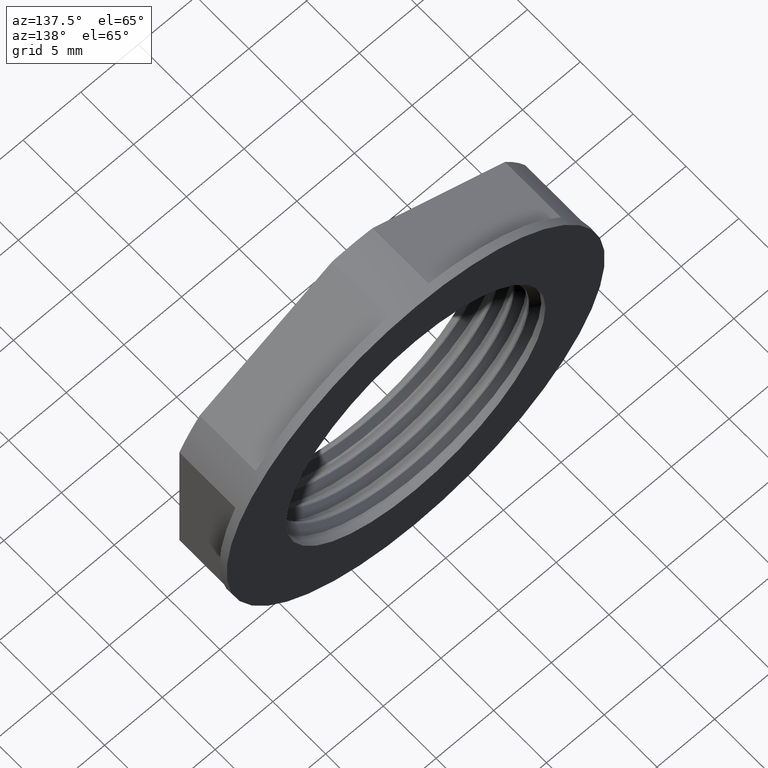
[diagram: clean part render]
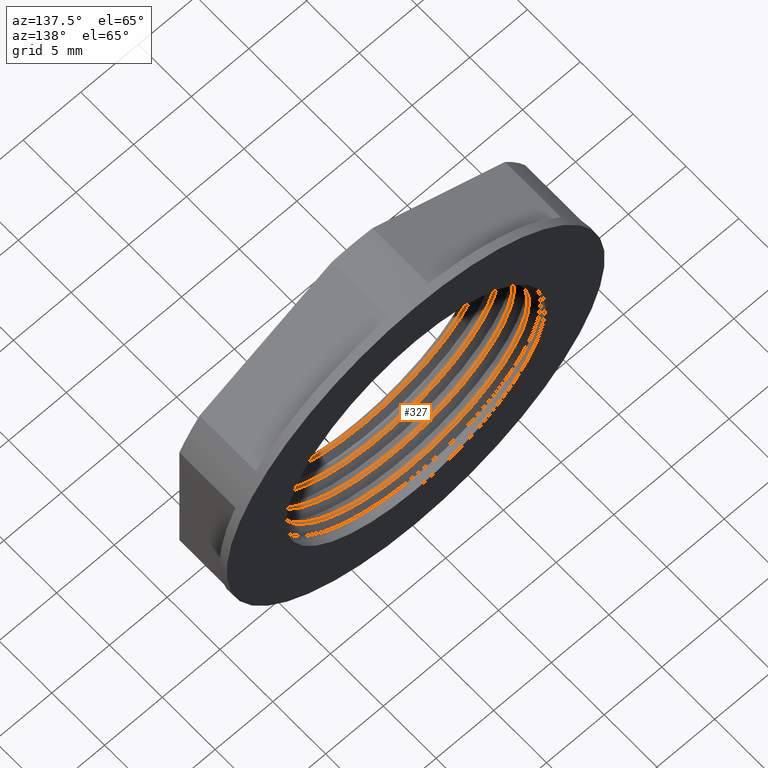
[diagram: same view with one face highlighted and labeled with its STEP entity id]
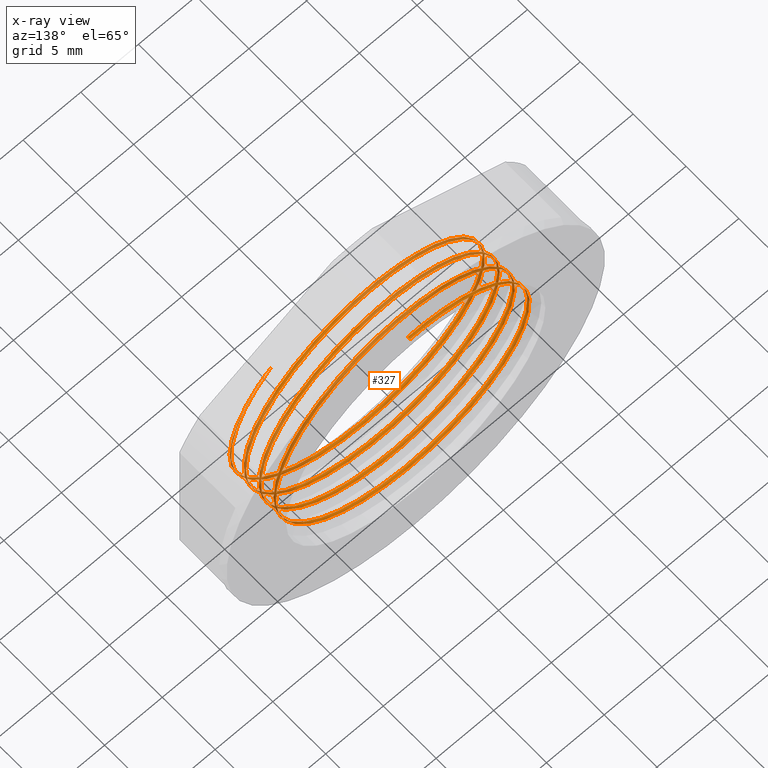
[diagram: x-ray of the same camera — body ghosted, the highlighted face saturated]
A machine part, auxiliary view. The second image highlights one B-rep face of the part: STEP entity #327.
The next image is the same camera in x-ray: the body ghosted, the highlighted face saturated — about 39% of this face is hidden behind the body in this view.
In plain terms, the highlighted face is a freeform B-spline surface patch.
Its self-contained STEP definition (entity closure, byte-faithful):
#142 = CARTESIAN_POINT ( 'NONE',  ( 0.0000000000000000000, -13.36021193324499900, 10.67889263332659900 ) ) ;
#160 = CARTESIAN_POINT ( 'NONE',  ( 0.0000000000000000000, -13.59135818351172100, 10.67889263332659900 ) ) ;
#184 = CARTESIAN_POINT ( 'NONE',  ( 7.005116609118015700, -18.83904097094790200, 8.060216446645577900 ) ) ;
#198 = CARTESIAN_POINT ( 'NONE',  ( 10.50376618384434100, -18.83904097094790200, -1.926043568885486200 ) ) ;
#266 = EDGE_CURVE ( 'NONE', #916, #941, #1122, .T. ) ;
#269 = EDGE_CURVE ( 'NONE', #953, #916, #1127, .T. ) ;
#272 = EDGE_CURVE ( 'NONE', #948, #941, #1131, .T. ) ;
#287 = EDGE_CURVE ( 'NONE', #948, #953, #2188, .T. ) ;
#327 = ADVANCED_FACE ( 'NONE', ( #2059 ), #1125, .F. ) ;
#411 = ORIENTED_EDGE ( 'NONE', *, *, #266, .T. ) ;
#413 = ORIENTED_EDGE ( 'NONE', *, *, #287, .T. ) ;
#425 = ORIENTED_EDGE ( 'NONE', *, *, #269, .T. ) ;
#432 = CARTESIAN_POINT ( 'NONE',  ( 2.175317087204642800E-020, -13.42521873960061500, 10.60142053830922400 ) ) ;
#443 = CARTESIAN_POINT ( 'NONE',  ( 0.0000000000000000000, -13.36021193324499900, 10.67889263332659900 ) ) ;
#444 = CARTESIAN_POINT ( 'NONE',  ( 2.175317087204642800E-020, -13.52635137715613400, 10.60142053830922400 ) ) ;
#445 = CARTESIAN_POINT ( 'NONE',  ( 0.0000000000000000000, -13.59135818351172100, 10.67889263332659900 ) ) ;
#459 = CARTESIAN_POINT ( 'NONE',  ( 7.005116609118015700, -18.83904097094790200, 8.060216446645577900 ) ) ;
#479 = CARTESIAN_POINT ( 'NONE',  ( -10.67889263332659200, -15.21083693324501100, -4.423342159850011300 ) ) ;
#480 = CARTESIAN_POINT ( 'NONE',  ( -10.67889263332659900, -17.94271193324500000, -2.134681538963205200E-016 ) ) ;
#481 = CARTESIAN_POINT ( 'NONE',  ( 4.423342159850017600, -14.68208693324499400, 10.67889263332659200 ) ) ;
#482 = CARTESIAN_POINT ( 'NONE',  ( 4.423342159850017600, -17.50208693324501400, 10.67889263332659200 ) ) ;
#483 = CARTESIAN_POINT ( 'NONE',  ( 7.551117396588299600, -18.82396193324500200, 7.551117396588299600 ) ) ;
#484 = CARTESIAN_POINT ( 'NONE',  ( -4.423342159850011300, -14.85833693324502000, 10.67889263332659200 ) ) ;
#485 = CARTESIAN_POINT ( 'NONE',  ( 7.551117396588299600, -14.59396193324500000, 7.551117396588299600 ) ) ;
#486 = CARTESIAN_POINT ( 'NONE',  ( -10.67889263332659900, -16.53271193324500000, -2.134681538963205200E-016 ) ) ;
#487 = CARTESIAN_POINT ( 'NONE',  ( 4.423342159850011300, -16.97333693324501200, -10.67889263332659200 ) ) ;
#488 = CARTESIAN_POINT ( 'NONE',  ( 10.67889263332659900, -14.41771193324500000, -1.094319014287845900E-015 ) ) ;
#489 = CARTESIAN_POINT ( 'NONE',  ( 10.67889263332659200, -15.91583693324499800, 4.423342159850011300 ) ) ;
#490 = CARTESIAN_POINT ( 'NONE',  ( 4.269363077926409800E-016, -18.29521193324500000, -10.67889263332659900 ) ) ;
#491 = CARTESIAN_POINT ( 'NONE',  ( 10.67889263332659200, -15.73958693324500800, -4.423342159850017600 ) ) ;
#492 = CARTESIAN_POINT ( 'NONE',  ( 10.67889263332659200, -18.55958693324502200, -4.423342159850017600 ) ) ;
#493 = CARTESIAN_POINT ( 'NONE',  ( 7.551117396588299600, -14.24146193324499900, -7.551117396588299600 ) ) ;
#494 = CARTESIAN_POINT ( 'NONE',  ( 10.67889263332659200, -18.73583693324501100, 4.423342159850011300 ) ) ;
#495 = CARTESIAN_POINT ( 'NONE',  ( -4.423342159850011300, -16.79708693324501600, -10.67889263332659200 ) ) ;
#496 = CARTESIAN_POINT ( 'NONE',  ( 10.67889263332659200, -14.32958693324500400, -4.423342159850017600 ) ) ;
#497 = CARTESIAN_POINT ( 'NONE',  ( 10.67889263332659200, -14.50583693324501400, 4.423342159850011300 ) ) ;
#498 = CARTESIAN_POINT ( 'NONE',  ( 4.423342159850011300, -14.15333693324500400, -10.67889263332659200 ) ) ;
#499 = CARTESIAN_POINT ( 'NONE',  ( 7.551117396588299600, -15.65146193324500100, -7.551117396588299600 ) ) ;
#500 = CARTESIAN_POINT ( 'NONE',  ( 10.67889263332659200, -17.14958693324504000, -4.423342159850017600 ) ) ;
#501 = CARTESIAN_POINT ( 'NONE',  ( 7.551117396588299600, -18.47146193324499900, -7.551117396588299600 ) ) ;
#502 = CARTESIAN_POINT ( 'NONE',  ( 4.269363077926409800E-016, -14.06521193324499900, -10.67889263332659900 ) ) ;
#503 = CARTESIAN_POINT ( 'NONE',  ( -10.67889263332659200, -16.44458693324498800, 4.423342159850011300 ) ) ;
#504 = CARTESIAN_POINT ( 'NONE',  ( 0.0000000000000000000, -16.18021193324500100, 10.67889263332659900 ) ) ;
#505 = CARTESIAN_POINT ( 'NONE',  ( -4.423342159850011300, -13.97708693324501900, -10.67889263332659200 ) ) ;
#506 = CARTESIAN_POINT ( 'NONE',  ( -7.551117396588299600, -18.11896193324500000, -7.551117396588299600 ) ) ;
#507 = CARTESIAN_POINT ( 'NONE',  ( -7.551117396588299600, -16.35646193324500100, 7.551117396588299600 ) ) ;
#508 = CARTESIAN_POINT ( 'NONE',  ( 4.423342159850011300, -18.38333693324503700, -10.67889263332659200 ) ) ;
#509 = CARTESIAN_POINT ( 'NONE',  ( 4.269363077926409800E-016, -15.47521193324499900, -10.67889263332659900 ) ) ;
#510 = CARTESIAN_POINT ( 'NONE',  ( 7.551117396588299600, -17.06146193324500300, -7.551117396588299600 ) ) ;
#511 = CARTESIAN_POINT ( 'NONE',  ( -4.423342159850011300, -16.26833693324500600, 10.67889263332659200 ) ) ;
#512 = CARTESIAN_POINT ( 'NONE',  ( 10.67889263332659900, -18.64771193324500200, -1.094319014287845900E-015 ) ) ;
#513 = CARTESIAN_POINT ( 'NONE',  ( -7.551117396588299600, -16.70896193324500000, -7.551117396588299600 ) ) ;
#514 = CARTESIAN_POINT ( 'NONE',  ( -10.67889263332659200, -16.62083693324503400, -4.423342159850011300 ) ) ;
#515 = CARTESIAN_POINT ( 'NONE',  ( 4.423342159850011300, -15.56333693324500800, -10.67889263332659200 ) ) ;
#516 = CARTESIAN_POINT ( 'NONE',  ( 4.269363077926409800E-016, -16.88521193324500300, -10.67889263332659900 ) ) ;
#517 = CARTESIAN_POINT ( 'NONE',  ( -4.423342159850011300, -15.38708693324499600, -10.67889263332659200 ) ) ;
#518 = CARTESIAN_POINT ( 'NONE',  ( -10.67889263332659900, -15.12271193324499800, -2.134681538963205200E-016 ) ) ;
#520 = CARTESIAN_POINT ( 'NONE',  ( 4.423342159850017600, -16.09208693324502100, 10.67889263332659200 ) ) ;
#521 = CARTESIAN_POINT ( 'NONE',  ( -4.423342159850011300, -18.20708693324501200, -10.67889263332659200 ) ) ;
#522 = CARTESIAN_POINT ( 'NONE',  ( -10.67889263332659200, -18.03083693324501300, -4.423342159850011300 ) ) ;
#523 = CARTESIAN_POINT ( 'NONE',  ( 10.67889263332659900, -17.23771193324500200, -1.094319014287845900E-015 ) ) ;
#524 = CARTESIAN_POINT ( 'NONE',  ( -10.67889263332659200, -17.85458693324503100, 4.423342159850011300 ) ) ;
#525 = CARTESIAN_POINT ( 'NONE',  ( 7.287019780957289000, -18.83140287788325700, 7.815215012219311100 ) ) ;
#526 = CARTESIAN_POINT ( 'NONE',  ( -10.67889263332659200, -15.03458693324501500, 4.423342159850011300 ) ) ;
#527 = CARTESIAN_POINT ( 'NONE',  ( 0.0000000000000000000, -14.77021193324500100, 10.67889263332659900 ) ) ;
#528 = CARTESIAN_POINT ( 'NONE',  ( -7.551117396588299600, -15.29896193324500000, -7.551117396588299600 ) ) ;
#529 = CARTESIAN_POINT ( 'NONE',  ( -7.551117396588299600, -17.76646193324501200, 7.551117396588299600 ) ) ;
#530 = CARTESIAN_POINT ( 'NONE',  ( 7.551117396588299600, -16.00396193324500200, 7.551117396588299600 ) ) ;
#531 = CARTESIAN_POINT ( 'NONE',  ( 7.551117396588299600, -17.41396193324500200, 7.551117396588299600 ) ) ;
#533 = CARTESIAN_POINT ( 'NONE',  ( -4.423342159850011300, -17.67833693324498900, 10.67889263332659200 ) ) ;
#534 = CARTESIAN_POINT ( 'NONE',  ( 0.0000000000000000000, -17.59021193324500100, 10.67889263332659900 ) ) ;
#536 = CARTESIAN_POINT ( 'NONE',  ( 10.67889263332659200, -17.32583693324503200, 4.423342159850011300 ) ) ;
#537 = CARTESIAN_POINT ( 'NONE',  ( 10.67889263332659900, -15.82771193324500000, -1.094319014287845900E-015 ) ) ;
#538 = CARTESIAN_POINT ( 'NONE',  ( -7.551117396588299600, -14.94646193324500400, 7.551117396588299600 ) ) ;
#539 = CARTESIAN_POINT ( 'NONE',  ( -7.551117396588299600, -18.35010818351175000, -7.551117396588299600 ) ) ;
#540 = CARTESIAN_POINT ( 'NONE',  ( 10.67889263332659200, -17.55698318351174700, 4.423342159850011300 ) ) ;
#541 = CARTESIAN_POINT ( 'NONE',  ( 10.67889263332659200, -17.38073318351175400, -4.423342159850017600 ) ) ;
#542 = CARTESIAN_POINT ( 'NONE',  ( 4.423342159850011300, -17.20448318351171600, -10.67889263332659200 ) ) ;
#544 = CARTESIAN_POINT ( 'NONE',  ( 0.0000000000000000000, -13.36021193324499900, 10.67889263332659900 ) ) ;
#545 = CARTESIAN_POINT ( 'NONE',  ( -4.423342159850011300, -13.44833693324499700, 10.67889263332659200 ) ) ;
#546 = CARTESIAN_POINT ( 'NONE',  ( 4.269363077926409800E-016, -17.11635818351175000, -10.67889263332659900 ) ) ;
#549 = CARTESIAN_POINT ( 'NONE',  ( 4.269363077926409800E-016, -18.52635818351175000, -10.67889263332659900 ) ) ;
#551 = CARTESIAN_POINT ( 'NONE',  ( -10.67889263332659200, -18.08573318351174900, 4.423342159850011300 ) ) ;
#552 = CARTESIAN_POINT ( 'NONE',  ( 10.67889263332659900, -17.46885818351175200, -1.094319014287845900E-015 ) ) ;
#553 = CARTESIAN_POINT ( 'NONE',  ( 7.551117396588299600, -17.29260818351174900, -7.551117396588299600 ) ) ;
#554 = CARTESIAN_POINT ( 'NONE',  ( 10.50376618384434100, -18.83904097094790200, -1.926043568885486200 ) ) ;
#555 = CARTESIAN_POINT ( 'NONE',  ( 9.903699325363202600, -18.76889212873840400, -5.198535467813405500 ) ) ;
#556 = CARTESIAN_POINT ( 'NONE',  ( 7.551117396588299600, -17.64510818351175900, 7.551117396588299600 ) ) ;
#558 = CARTESIAN_POINT ( 'NONE',  ( -4.423342159850011300, -17.02823318351173000, -10.67889263332659200 ) ) ;
#559 = CARTESIAN_POINT ( 'NONE',  ( -10.67889263332659900, -16.76385818351175100, -2.134681538963205200E-016 ) ) ;
#560 = CARTESIAN_POINT ( 'NONE',  ( -10.67889263332659200, -16.67573318351171400, 4.423342159850011300 ) ) ;
#561 = CARTESIAN_POINT ( 'NONE',  ( 7.551117396588299600, -18.70260818351174900, -7.551117396588299600 ) ) ;
#562 = CARTESIAN_POINT ( 'NONE',  ( -7.551117396588299600, -16.58760818351175100, 7.551117396588299600 ) ) ;
#563 = CARTESIAN_POINT ( 'NONE',  ( -10.67889263332659200, -16.85198318351174900, -4.423342159850011300 ) ) ;
#564 = CARTESIAN_POINT ( 'NONE',  ( 0.0000000000000000000, -16.41135818351174800, 10.67889263332659900 ) ) ;
#565 = CARTESIAN_POINT ( 'NONE',  ( -10.67889263332659200, -13.62458693324502700, 4.423342159850011300 ) ) ;
#566 = CARTESIAN_POINT ( 'NONE',  ( -4.423342159850011300, -17.90948318351170700, 10.67889263332659200 ) ) ;
#567 = CARTESIAN_POINT ( 'NONE',  ( 4.423342159850017600, -16.32323318351173200, 10.67889263332659200 ) ) ;
#568 = CARTESIAN_POINT ( 'NONE',  ( -7.551117396588299600, -16.94010818351175000, -7.551117396588299600 ) ) ;
#569 = CARTESIAN_POINT ( 'NONE',  ( 0.0000000000000000000, -17.82135818351175200, 10.67889263332659900 ) ) ;
#570 = CARTESIAN_POINT ( 'NONE',  ( 7.551117396588299600, -16.23510818351174800, 7.551117396588299600 ) ) ;
#571 = CARTESIAN_POINT ( 'NONE',  ( 10.67889263332659200, -16.14698318351171800, 4.423342159850011300 ) ) ;
#572 = CARTESIAN_POINT ( 'NONE',  ( 10.67889263332659200, -15.97073318351173800, -4.423342159850017600 ) ) ;
#573 = CARTESIAN_POINT ( 'NONE',  ( 4.423342159850011300, -15.79448318351173200, -10.67889263332659200 ) ) ;
#574 = CARTESIAN_POINT ( 'NONE',  ( 4.269363077926409800E-016, -15.70635818351175100, -10.67889263332659900 ) ) ;
#575 = CARTESIAN_POINT ( 'NONE',  ( -10.67889263332659200, -18.26198318351172700, -4.423342159850011300 ) ) ;
#576 = CARTESIAN_POINT ( 'NONE',  ( -4.423342159850011300, -15.61823318351174400, -10.67889263332659200 ) ) ;
#578 = CARTESIAN_POINT ( 'NONE',  ( -4.423342159850011300, -16.49948318351172100, 10.67889263332659200 ) ) ;
#579 = CARTESIAN_POINT ( 'NONE',  ( -10.67889263332659900, -18.17385818351174700, -2.134681538963205200E-016 ) ) ;
#580 = CARTESIAN_POINT ( 'NONE',  ( 4.423342159850017600, -17.73323318351171800, 10.67889263332659200 ) ) ;
#581 = CARTESIAN_POINT ( 'NONE',  ( 7.551117396588299600, -15.88260818351175100, -7.551117396588299600 ) ) ;
#582 = CARTESIAN_POINT ( 'NONE',  ( 10.67889263332659900, -16.05885818351174900, -1.094319014287845900E-015 ) ) ;
#585 = CARTESIAN_POINT ( 'NONE',  ( -7.551117396588299600, -13.88896193324500000, -7.551117396588299600 ) ) ;
#587 = CARTESIAN_POINT ( 'NONE',  ( 4.423342159850011300, -18.61448318351175100, -10.67889263332659200 ) ) ;
#588 = CARTESIAN_POINT ( 'NONE',  ( -7.551117396588299600, -17.99760818351174800, 7.551117396588299600 ) ) ;
#589 = CARTESIAN_POINT ( 'NONE',  ( -10.67889263332659200, -13.80083693324500700, -4.423342159850011300 ) ) ;
#590 = CARTESIAN_POINT ( 'NONE',  ( -7.551117396588299600, -13.53646193324500000, 7.551117396588299600 ) ) ;
#591 = CARTESIAN_POINT ( 'NONE',  ( -10.67889263332659900, -13.71271193324500400, -2.134681538963205200E-016 ) ) ;
#595 = CARTESIAN_POINT ( 'NONE',  ( -4.423342159850011300, -18.43823318351171300, -10.67889263332659200 ) ) ;
#596 = CARTESIAN_POINT ( 'NONE',  ( -7.551117396588299600, -15.17760818351174900, 7.551117396588299600 ) ) ;
#597 = CARTESIAN_POINT ( 'NONE',  ( -10.67889263332659900, -15.35385818351175000, -2.134681538963205200E-016 ) ) ;
#599 = CARTESIAN_POINT ( 'NONE',  ( -7.551117396588299600, -13.76760818351172100, 7.551117396588299600 ) ) ;
#601 = CARTESIAN_POINT ( 'NONE',  ( 10.67889263332659200, -14.56073318351173500, -4.423342159850017600 ) ) ;
#602 = CARTESIAN_POINT ( 'NONE',  ( -10.67889263332659200, -15.26573318351173300, 4.423342159850011300 ) ) ;
#603 = CARTESIAN_POINT ( 'NONE',  ( -10.67889263332659200, -13.85573318351172900, 4.423342159850011300 ) ) ;
#604 = CARTESIAN_POINT ( 'NONE',  ( -10.67889263332659200, -15.44198318351172000, -4.423342159850011300 ) ) ;
#605 = CARTESIAN_POINT ( 'NONE',  ( 0.0000000000000000000, -13.59135818351172100, 10.67889263332659900 ) ) ;
#613 = CARTESIAN_POINT ( 'NONE',  ( 10.67889263332659200, -14.73698318351173600, 4.423342159850011300 ) ) ;
#616 = CARTESIAN_POINT ( 'NONE',  ( 4.269363077926409800E-016, -14.29635818351173900, -10.67889263332659900 ) ) ;
#617 = CARTESIAN_POINT ( 'NONE',  ( -4.423342159850011300, -13.67948318351172100, 10.67889263332659200 ) ) ;
#618 = CARTESIAN_POINT ( 'NONE',  ( 0.0000000000000000000, -15.00135818351175000, 10.67889263332659900 ) ) ;
#621 = CARTESIAN_POINT ( 'NONE',  ( 7.551117396588299600, -14.47260818351172100, -7.551117396588299600 ) ) ;
#623 = CARTESIAN_POINT ( 'NONE',  ( -4.423342159850011300, -15.08948318351173200, 10.67889263332659200 ) ) ;
#627 = CARTESIAN_POINT ( 'NONE',  ( -10.67889263332659900, -13.94385818351172000, -2.134681538963205200E-016 ) ) ;
#629 = CARTESIAN_POINT ( 'NONE',  ( 10.67889263332659900, -14.64885818351172000, -1.094319014287845900E-015 ) ) ;
#631 = CARTESIAN_POINT ( 'NONE',  ( -4.423342159850011300, -14.20823318351171900, -10.67889263332659200 ) ) ;
#632 = CARTESIAN_POINT ( 'NONE',  ( -7.551117396588299600, -15.53010818351175000, -7.551117396588299600 ) ) ;
#635 = CARTESIAN_POINT ( 'NONE',  ( 4.423342159850017600, -14.91323318351172500, 10.67889263332659200 ) ) ;
#637 = CARTESIAN_POINT ( 'NONE',  ( 4.423342159850011300, -14.38448318351174900, -10.67889263332659200 ) ) ;
#638 = CARTESIAN_POINT ( 'NONE',  ( -7.551117396588299600, -14.12010818351172500, -7.551117396588299600 ) ) ;
#640 = CARTESIAN_POINT ( 'NONE',  ( -10.67889263332659200, -14.03198318351173800, -4.423342159850011300 ) ) ;
#642 = CARTESIAN_POINT ( 'NONE',  ( 7.551117396588299600, -14.82510818351172000, 7.551117396588299600 ) ) ;
#673 = CARTESIAN_POINT ( 'NONE',  ( 10.50376618384434100, -18.83904097094790200, -1.926043568885486200 ) ) ;
#681 = CARTESIAN_POINT ( 'NONE',  ( 10.57508316248702600, -18.83904097094691500, -1.473277081756839000 ) ) ;
#689 = CARTESIAN_POINT ( 'NONE',  ( 10.65547338890179900, -18.83904097094789200, -0.09865790187651535300 ) ) ;
#691 = CARTESIAN_POINT ( 'NONE',  ( 9.055996457908575400, -18.83904097094789500, 5.590710677642958300 ) ) ;
#692 = CARTESIAN_POINT ( 'NONE',  ( 8.548775882547603900, -18.83904097094789500, 6.353002111627753300 ) ) ;
#693 = CARTESIAN_POINT ( 'NONE',  ( 10.62052950927791700, -18.83904097094789200, -1.017349474635495000 ) ) ;
#695 = CARTESIAN_POINT ( 'NONE',  ( 9.285446168575006700, -18.83904097094804400, 5.194766834375951900 ) ) ;
#702 = CARTESIAN_POINT ( 'NONE',  ( 7.665877778372920800, -18.83904097094790900, 7.421674225030356500 ) ) ;
#703 = CARTESIAN_POINT ( 'NONE',  ( 9.876730814455154200, -18.83904097094789900, 3.943668017905609200 ) ) ;
#704 = CARTESIAN_POINT ( 'NONE',  ( 7.343504120797816400, -18.83904097094794100, 7.751334764156590400 ) ) ;
#708 = CARTESIAN_POINT ( 'NONE',  ( 8.270994060045785200, -18.83904097094791300, 6.719342990791637300 ) ) ;
#709 = CARTESIAN_POINT ( 'NONE',  ( 7.005116609118015700, -18.83904097094790200, 8.060216446645577900 ) ) ;
#724 = CARTESIAN_POINT ( 'NONE',  ( 10.64466065656831800, -18.83904097094790200, 0.3672732447393625100 ) ) ;
#730 = CARTESIAN_POINT ( 'NONE',  ( 9.695325071701507400, -18.83904097094803700, 4.372854541308729600 ) ) ;
#731 = CARTESIAN_POINT ( 'NONE',  ( 10.52525052359395000, -18.83904097094790200, 1.744316662086510000 ) ) ;
#732 = CARTESIAN_POINT ( 'NONE',  ( 10.33347029746595600, -18.83904097094789500, 2.638458420914978400 ) ) ;
#913 = EDGE_LOOP ( 'NONE', ( #411, #1109, #413, #425 ) ) ;
#916 = VERTEX_POINT ( 'NONE', #142 ) ;
#941 = VERTEX_POINT ( 'NONE', #160 ) ;
#948 = VERTEX_POINT ( 'NONE', #198 ) ;
#953 = VERTEX_POINT ( 'NONE', #184 ) ;
#1109 = ORIENTED_EDGE ( 'NONE', *, *, #272, .F. ) ;
#1122 =( BOUNDED_CURVE ( )  B_SPLINE_CURVE ( 3, ( #443, #432, #444, #445 ),
 .UNSPECIFIED., .F., .T. ) 
 B_SPLINE_CURVE_WITH_KNOTS ( ( 4, 4 ),
 ( 0.0000000000000000000, 0.0002613565186195799200 ),
 .UNSPECIFIED. ) 
 CURVE ( )  GEOMETRIC_REPRESENTATION_ITEM ( )  RATIONAL_B_SPLINE_CURVE ( ( 1.000000000000000000, 0.7618584064576889900, 0.7618584064576889900, 1.000000000000000000 ) ) 
 REPRESENTATION_ITEM ( '' )  );
#1125 =( BOUNDED_SURFACE ( )  B_SPLINE_SURFACE ( 3, 2, ( 
 ( #2032, #2043, #2018, #2030, #2058, #2033, #2053, #2023, #2045, #2009, #2056, #2050, #2031, #2047, #2011, #2046, #2049, #2040, #2017, #2061, #2012, #2006, #2041, #2034, #2060, #2007, #2026, #2051, #2013, #2042, #2062, #2036, #2054, #2063, #2064, #2052, #2014, #2015, #2037, #2019, #2024, #2044, #2055, #2025, #2010, #2028, #2008, #2027, #2016, #2020, #2021, #2022, #2029, #1163, #1168, #1171, #1164, #1181, #1191, #1149, #1196, #1150, #1159, #1172, #1170, #1154, #1153, #1178, #1189, #1155, #1152, #1143, #1139, #1192, #1197, #1156, #1160, #1166, #1151, #1158, #1198, #1140, #1162, #1157, #1161, #1165, #1169, #1199, #1146, #1179, #1194, #1182, #1173, #1183, #1174, #1193, #1184, #1185, #1200, #1176, #1180, #1167, #1175, #1195, #1177, #1138, #1144, #1141, #1201, #1145, #1186, #1188, #1187, #1190, #1142 ),
 ( #1147, #1148, #1227, #1220, #1221, #1228, #1254, #1215, #1265, #1261, #1245, #1249, #1216, #1256, #1232, #1239, #1250, #1222, #1263, #1217, #1253, #1213, #1204, #1208, #1209, #1203, #1264, #1236, #1251, #1207, #1218, #1237, #1219, #1225, #1233, #1214, #1246, #1231, #1247, #1205, #1252, #1255, #1258, #1259, #1206, #1257, #1260, #1248, #1241, #1262, #1202, #1210, #1211, #1212, #1223, #1224, #1226, #1229, #1230, #1234, #1235, #1238, #1240, #1242, #1243, #1244, #1307, #1301, #1271, #1302, #1317, #1266, #1308, #1314, #1321, #1269, #1303, #1297, #1310, #1285, #1267, #1283, #1299, #1311, #1276, #1287, #1319, #1323, #1325, #1277, #1318, #1316, #1280, #1305, #1274, #1304, #1322, #1286, #1306, #1324, #1328, #1312, #1298, #1309, #1315, #1313, #1326, #1270, #1327, #1320, #1300, #1329, #1268, #1294, #1281 ),
 ( #1272, #1273, #1292, #1278, #1275, #1279, #1282, #1284, #1295, #1288, #1289, #1290, #1291, #1293, #1296, #1345, #1385, #1338, #1389, #1393, #1383, #1336, #1364, #1391, #1372, #1371, #1365, #1335, #1366, #1381, #1330, #1373, #1378, #1386, #1333, #1367, #1361, #1374, #1349, #1331, #1347, #1363, #1375, #1340, #1351, #1384, #1387, #1390, #1341, #1382, #1380, #1344, #1369, #1339, #1368, #1388, #1350, #1370, #1392, #1332, #1376, #1362, #1377, #1379, #1334, #1337, #1342, #1343, #1346, #1348, #1352, #1353, #1358, #1354, #1355, #1356, #1357, #1359, #1360, #1399, #1395, #1433, #1442, #1443, #1411, #1441, #1401, #1397, #1398, #1416, #1410, #1412, #1417, #1438, #1406, #1447, #1444, #1431, #1434, #1407, #1440, #1419, #1425, #1435, #1413, #1445, #1408, #1437, #1404, #1396, #1400, #1402, #1394, #1446, #1423 ),
 ( #1409, #1414, #1420, #1405, #1432, #1421, #1436, #1403, #1439, #1415, #1418, #1422, #1424, #1426, #1427, #1428, #1429, #1430, #1461, #1448, #1458, #1449, #1459, #1460, #1462, #1450, #1463, #1464, #1451, #1452, #1453, #1454, #1455, #1456, #1457, #1500, #1482, #1465, #1480, #1492, #1501, #1473, #1484, #1507, #1511, #1513, #1474, #1505, #1504, #1477, #1497, #1471, #1494, #1509, #1483, #1495, #1512, #1516, #1502, #1491, #1496, #1503, #1499, #1514, #1468, #1515, #1506, #1493, #1508, #1498, #1488, #1478, #1510, #1487, #1485, #1517, #1466, #1470, #1467, #1469, #1472, #1475, #1486, #1476, #1479, #1481, #1489, #1490, #1534, #1535, #1541, #1566, #1529, #1576, #1572, #1557, #1561, #1530, #1568, #1544, #1551, #1562, #1536, #1574, #1531, #1565, #1527, #1520, #1524, #1525, #1519, #1575, #1548, #1563, #1523 ) ),
 .UNSPECIFIED., .F., .F., .T. ) 
 B_SPLINE_SURFACE_WITH_KNOTS ( ( 4, 4 ),
 ( 3, 2, 2, 2, 2, 2, 2, 2, 2, 2, 2, 2, 2, 2, 2, 2, 2, 2, 2, 2, 2, 2, 2, 2, 2, 2, 2, 2, 2, 2, 2, 2, 2, 2, 2, 2, 2, 2, 2, 2, 2, 2, 2, 2, 2, 2, 2, 2, 2, 2, 2, 2, 2, 2, 2, 2, 2, 3 ),
 ( 0.0000000000000000000, 1.000000000000000000 ),
 ( 0.0000000000000000000, 0.01562500000000000000, 0.03125000000000000000, 0.04687500000000000000, 0.06250000000000000000, 0.07812500000000000000, 0.09375000000000000000, 0.1093750000000000000, 0.1250000000000000000, 0.1406250000000000000, 0.1562500000000000000, 0.1718750000000000000, 0.1875000000000000000, 0.2031250000000000000, 0.2187500000000000000, 0.2343750000000000000, 0.2500000000000000000, 0.2656250000000000000, 0.2812500000000000000, 0.2968750000000000000, 0.3125000000000000000, 0.3281250000000000000, 0.3437500000000000000, 0.3593750000000000000, 0.3750000000000000000, 0.3906250000000000000, 0.4062500000000000000, 0.4218750000000000000, 0.4375000000000000000, 0.4531250000000000000, 0.4687500000000000000, 0.4843750000000000000, 0.5000000000000000000, 0.5156250000000000000, 0.5312500000000000000, 0.5468750000000000000, 0.5625000000000000000, 0.5781250000000000000, 0.5937500000000000000, 0.6093750000000000000, 0.6250000000000000000, 0.6406250000000000000, 0.6562500000000000000, 0.6718750000000000000, 0.6875000000000000000, 0.7031250000000000000, 0.7187500000000000000, 0.7343750000000000000, 0.7500000000000000000, 0.7656250000000000000, 0.7812500000000000000, 0.7968750000000000000, 0.8125000000000000000, 0.8281250000000000000, 0.8437500000000000000, 0.8593750000000000000, 0.8750000000000000000, 0.8864876294589180100 ),
 .UNSPECIFIED. ) 
 GEOMETRIC_REPRESENTATION_ITEM ( )  RATIONAL_B_SPLINE_SURFACE ( (
 ( 1.000000000000000000, 0.9238795325112869600, 1.000000000000000000, 0.9238795325112869600, 1.000000000000000000, 0.9238795325112869600, 1.000000000000000000, 0.9238795325112869600, 1.000000000000000000, 0.9238795325112869600, 1.000000000000000000, 0.9238795325112869600, 1.000000000000000000, 0.9238795325112869600, 1.000000000000000000, 0.9238795325112869600, 1.000000000000000000, 0.9238795325112869600, 1.000000000000000000, 0.9238795325112869600, 1.000000000000000000, 0.9238795325112869600, 1.000000000000000000, 0.9238795325112869600, 1.000000000000000000, 0.9238795325112869600, 1.000000000000000000, 0.9238795325112869600, 1.000000000000000000, 0.9238795325112869600, 1.000000000000000000, 0.9238795325112869600, 1.000000000000000000, 0.9238795325112869600, 1.000000000000000000, 0.9238795325112869600, 1.000000000000000000, 0.9238795325112869600, 1.000000000000000000, 0.9238795325112869600, 1.000000000000000000, 0.9238795325112869600, 1.000000000000000000, 0.9238795325112869600, 1.000000000000000000, 0.9238795325112869600, 1.000000000000000000, 0.9238795325112869600, 1.000000000000000000, 0.9238795325112869600, 1.000000000000000000, 0.9238795325112869600, 1.000000000000000000, 0.9238795325112869600, 1.000000000000000000, 0.9238795325112869600, 1.000000000000000000, 0.9238795325112869600, 1.000000000000000000, 0.9238795325112869600, 1.000000000000000000, 0.9238795325112869600, 1.000000000000000000, 0.9238795325112869600, 1.000000000000000000, 0.9238795325112869600, 1.000000000000000000, 0.9238795325112869600, 1.000000000000000000, 0.9238795325112869600, 1.000000000000000000, 0.9238795325112869600, 1.000000000000000000, 0.9238795325112869600, 1.000000000000000000, 0.9238795325112869600, 1.000000000000000000, 0.9238795325112869600, 1.000000000000000000, 0.9238795325112869600, 1.000000000000000000, 0.9238795325112869600, 1.000000000000000000, 0.9238795325112869600, 1.000000000000000000, 0.9238795325112869600, 1.000000000000000000, 0.9238795325112869600, 1.000000000000000000, 0.9238795325112869600, 1.000000000000000000, 0.9238795325112869600, 1.000000000000000000, 0.9238795325112869600, 1.000000000000000000, 0.9238795325112869600, 1.000000000000000000, 0.9238795325112869600, 1.000000000000000000, 0.9238795325112869600, 1.000000000000000000, 0.9238795325112869600, 1.000000000000000000, 0.9238795325112869600, 1.000000000000000000, 0.9238795325112869600, 1.000000000000000000, 0.9238795325112869600, 1.000000000000000000, 0.9238795325112869600, 1.000000000000000000, 0.9238795325112869600, 1.000000000000000000, 0.9440356016160039700, 0.9703621819874140900),
 ( 0.7618584064576889900, 0.7038653883979240100, 0.7618584064576889900, 0.7038653883979240100, 0.7618584064576889900, 0.7038653883979240100, 0.7618584064576889900, 0.7038653883979240100, 0.7618584064576889900, 0.7038653883979240100, 0.7618584064576889900, 0.7038653883979240100, 0.7618584064576889900, 0.7038653883979240100, 0.7618584064576889900, 0.7038653883979240100, 0.7618584064576889900, 0.7038653883979240100, 0.7618584064576889900, 0.7038653883979240100, 0.7618584064576889900, 0.7038653883979240100, 0.7618584064576889900, 0.7038653883979240100, 0.7618584064576889900, 0.7038653883979240100, 0.7618584064576889900, 0.7038653883979240100, 0.7618584064576889900, 0.7038653883979240100, 0.7618584064576889900, 0.7038653883979240100, 0.7618584064576889900, 0.7038653883979240100, 0.7618584064576889900, 0.7038653883979240100, 0.7618584064576889900, 0.7038653883979240100, 0.7618584064576889900, 0.7038653883979240100, 0.7618584064576889900, 0.7038653883979240100, 0.7618584064576889900, 0.7038653883979240100, 0.7618584064576889900, 0.7038653883979240100, 0.7618584064576889900, 0.7038653883979240100, 0.7618584064576889900, 0.7038653883979240100, 0.7618584064576889900, 0.7038653883979240100, 0.7618584064576889900, 0.7038653883979240100, 0.7618584064576889900, 0.7038653883979240100, 0.7618584064576889900, 0.7038653883979240100, 0.7618584064576889900, 0.7038653883979240100, 0.7618584064576889900, 0.7038653883979240100, 0.7618584064576889900, 0.7038653883979240100, 0.7618584064576889900, 0.7038653883979240100, 0.7618584064576889900, 0.7038653883979240100, 0.7618584064576889900, 0.7038653883979240100, 0.7618584064576889900, 0.7038653883979240100, 0.7618584064576889900, 0.7038653883979240100, 0.7618584064576889900, 0.7038653883979240100, 0.7618584064576889900, 0.7038653883979240100, 0.7618584064576889900, 0.7038653883979240100, 0.7618584064576889900, 0.7038653883979240100, 0.7618584064576889900, 0.7038653883979240100, 0.7618584064576889900, 0.7038653883979240100, 0.7618584064576889900, 0.7038653883979240100, 0.7618584064576889900, 0.7038653883979240100, 0.7618584064576889900, 0.7038653883979240100, 0.7618584064576889900, 0.7038653883979240100, 0.7618584064576889900, 0.7038653883979240100, 0.7618584064576889900, 0.7038653883979240100, 0.7618584064576889900, 0.7038653883979240100, 0.7618584064576889900, 0.7038653883979240100, 0.7618584064576889900, 0.7038653883979240100, 0.7618584064576889900, 0.7038653883979240100, 0.7618584064576889900, 0.7038653883979240100, 0.7618584064576889900, 0.7038653883979240100, 0.7618584064576889900, 0.7038653883979240100, 0.7618584064576889900, 0.7192214590864940400, 0.7392785856557370100),
 ( 0.7618584064576889900, 0.7038653883979240100, 0.7618584064576889900, 0.7038653883979240100, 0.7618584064576889900, 0.7038653883979240100, 0.7618584064576889900, 0.7038653883979240100, 0.7618584064576889900, 0.7038653883979240100, 0.7618584064576889900, 0.7038653883979240100, 0.7618584064576889900, 0.7038653883979240100, 0.7618584064576889900, 0.7038653883979240100, 0.7618584064576889900, 0.7038653883979240100, 0.7618584064576889900, 0.7038653883979240100, 0.7618584064576889900, 0.7038653883979240100, 0.7618584064576889900, 0.7038653883979240100, 0.7618584064576889900, 0.7038653883979240100, 0.7618584064576889900, 0.7038653883979240100, 0.7618584064576889900, 0.7038653883979240100, 0.7618584064576889900, 0.7038653883979240100, 0.7618584064576889900, 0.7038653883979240100, 0.7618584064576889900, 0.7038653883979240100, 0.7618584064576889900, 0.7038653883979240100, 0.7618584064576889900, 0.7038653883979240100, 0.7618584064576889900, 0.7038653883979240100, 0.7618584064576889900, 0.7038653883979240100, 0.7618584064576889900, 0.7038653883979240100, 0.7618584064576889900, 0.7038653883979240100, 0.7618584064576889900, 0.7038653883979240100, 0.7618584064576889900, 0.7038653883979240100, 0.7618584064576889900, 0.7038653883979240100, 0.7618584064576889900, 0.7038653883979240100, 0.7618584064576889900, 0.7038653883979240100, 0.7618584064576889900, 0.7038653883979240100, 0.7618584064576889900, 0.7038653883979240100, 0.7618584064576889900, 0.7038653883979240100, 0.7618584064576889900, 0.7038653883979240100, 0.7618584064576889900, 0.7038653883979240100, 0.7618584064576889900, 0.7038653883979240100, 0.7618584064576889900, 0.7038653883979240100, 0.7618584064576889900, 0.7038653883979240100, 0.7618584064576889900, 0.7038653883979240100, 0.7618584064576889900, 0.7038653883979240100, 0.7618584064576889900, 0.7038653883979240100, 0.7618584064576889900, 0.7038653883979240100, 0.7618584064576889900, 0.7038653883979240100, 0.7618584064576889900, 0.7038653883979240100, 0.7618584064576889900, 0.7038653883979240100, 0.7618584064576889900, 0.7038653883979240100, 0.7618584064576889900, 0.7038653883979240100, 0.7618584064576889900, 0.7038653883979240100, 0.7618584064576889900, 0.7038653883979240100, 0.7618584064576889900, 0.7038653883979240100, 0.7618584064576889900, 0.7038653883979240100, 0.7618584064576889900, 0.7038653883979240100, 0.7618584064576889900, 0.7038653883979240100, 0.7618584064576889900, 0.7038653883979240100, 0.7618584064576889900, 0.7038653883979240100, 0.7618584064576889900, 0.7038653883979240100, 0.7618584064576889900, 0.7038653883979240100, 0.7618584064576889900, 0.7192214590864940400, 0.7392785856557370100),
 ( 1.000000000000000000, 0.9238795325112869600, 1.000000000000000000, 0.9238795325112869600, 1.000000000000000000, 0.9238795325112869600, 1.000000000000000000, 0.9238795325112869600, 1.000000000000000000, 0.9238795325112869600, 1.000000000000000000, 0.9238795325112869600, 1.000000000000000000, 0.9238795325112869600, 1.000000000000000000, 0.9238795325112869600, 1.000000000000000000, 0.9238795325112869600, 1.000000000000000000, 0.9238795325112869600, 1.000000000000000000, 0.9238795325112869600, 1.000000000000000000, 0.9238795325112869600, 1.000000000000000000, 0.9238795325112869600, 1.000000000000000000, 0.9238795325112869600, 1.000000000000000000, 0.9238795325112869600, 1.000000000000000000, 0.9238795325112869600, 1.000000000000000000, 0.9238795325112869600, 1.000000000000000000, 0.9238795325112869600, 1.000000000000000000, 0.9238795325112869600, 1.000000000000000000, 0.9238795325112869600, 1.000000000000000000, 0.9238795325112869600, 1.000000000000000000, 0.9238795325112869600, 1.000000000000000000, 0.9238795325112869600, 1.000000000000000000, 0.9238795325112869600, 1.000000000000000000, 0.9238795325112869600, 1.000000000000000000, 0.9238795325112869600, 1.000000000000000000, 0.9238795325112869600, 1.000000000000000000, 0.9238795325112869600, 1.000000000000000000, 0.9238795325112869600, 1.000000000000000000, 0.9238795325112869600, 1.000000000000000000, 0.9238795325112869600, 1.000000000000000000, 0.9238795325112869600, 1.000000000000000000, 0.9238795325112869600, 1.000000000000000000, 0.9238795325112869600, 1.000000000000000000, 0.9238795325112869600, 1.000000000000000000, 0.9238795325112869600, 1.000000000000000000, 0.9238795325112869600, 1.000000000000000000, 0.9238795325112869600, 1.000000000000000000, 0.9238795325112869600, 1.000000000000000000, 0.9238795325112869600, 1.000000000000000000, 0.9238795325112869600, 1.000000000000000000, 0.9238795325112869600, 1.000000000000000000, 0.9238795325112869600, 1.000000000000000000, 0.9238795325112869600, 1.000000000000000000, 0.9238795325112869600, 1.000000000000000000, 0.9238795325112869600, 1.000000000000000000, 0.9238795325112869600, 1.000000000000000000, 0.9238795325112869600, 1.000000000000000000, 0.9238795325112869600, 1.000000000000000000, 0.9238795325112869600, 1.000000000000000000, 0.9238795325112869600, 1.000000000000000000, 0.9238795325112869600, 1.000000000000000000, 0.9238795325112869600, 1.000000000000000000, 0.9238795325112869600, 1.000000000000000000, 0.9238795325112869600, 1.000000000000000000, 0.9238795325112869600, 1.000000000000000000, 0.9440356016160039700, 0.9703621819874140900) ) ) 
 REPRESENTATION_ITEM ( '' )  SURFACE ( )  );
#1127 =( BOUNDED_CURVE ( )  B_SPLINE_CURVE ( 2, ( #459, #525, #483, #494, #512, #492, #501, #508, #490, #521, #506, #522, #480, #524, #529, #533, #534, #482, #531, #536, #523, #500, #510, #487, #516, #495, #513, #514, #486, #503, #507, #511, #504, #520, #530, #489, #537, #491, #499, #515, #509, #517, #528, #479, #518, #526, #538, #484, #527, #481, #485, #497, #488, #496, #493, #498, #502, #505, #585, #589, #591, #565, #590, #545, #544 ),
 .UNSPECIFIED., .F., .F. ) 
 B_SPLINE_CURVE_WITH_KNOTS ( ( 3, 2, 2, 2, 2, 2, 2, 2, 2, 2, 2, 2, 2, 2, 2, 2, 2, 2, 2, 2, 2, 2, 2, 2, 2, 2, 2, 2, 2, 2, 2, 2, 3 ),
 ( 0.4006944775751019600, 0.4021126294589180100, 0.4177376294589180100, 0.4333626294589180100, 0.4489876294589180100, 0.4646126294589180100, 0.4802376294589180100, 0.4958626294589180100, 0.5114876294589180100, 0.5271126294589180100, 0.5427376294589180100, 0.5583626294589180100, 0.5739876294589180100, 0.5896126294589180100, 0.6052376294589180100, 0.6208626294589180100, 0.6364876294589180100, 0.6521126294589180100, 0.6677376294589180100, 0.6833626294589180100, 0.6989876294589180100, 0.7146126294589180100, 0.7302376294589180100, 0.7458626294589180100, 0.7614876294589180100, 0.7771126294589180100, 0.7927376294589180100, 0.8083626294589180100, 0.8239876294589180100, 0.8396126294589181200, 0.8552376294589180100, 0.8708626294589180100, 0.8864876294589180100 ),
 .UNSPECIFIED. ) 
 CURVE ( )  GEOMETRIC_REPRESENTATION_ITEM ( )  RATIONAL_B_SPLINE_CURVE ( ( 0.9874364644165833900, 0.9930911754005711200, 1.000000000000000000, 0.9238795325112869600, 1.000000000000000000, 0.9238795325112869600, 1.000000000000000000, 0.9238795325112869600, 1.000000000000000000, 0.9238795325112869600, 1.000000000000000000, 0.9238795325112869600, 1.000000000000000000, 0.9238795325112869600, 1.000000000000000000, 0.9238795325112869600, 1.000000000000000000, 0.9238795325112869600, 1.000000000000000000, 0.9238795325112869600, 1.000000000000000000, 0.9238795325112869600, 1.000000000000000000, 0.9238795325112869600, 1.000000000000000000, 0.9238795325112869600, 1.000000000000000000, 0.9238795325112869600, 1.000000000000000000, 0.9238795325112869600, 1.000000000000000000, 0.9238795325112869600, 1.000000000000000000, 0.9238795325112869600, 1.000000000000000000, 0.9238795325112869600, 1.000000000000000000, 0.9238795325112869600, 1.000000000000000000, 0.9238795325112869600, 1.000000000000000000, 0.9238795325112869600, 1.000000000000000000, 0.9238795325112869600, 1.000000000000000000, 0.9238795325112869600, 1.000000000000000000, 0.9238795325112869600, 1.000000000000000000, 0.9238795325112869600, 1.000000000000000000, 0.9238795325112869600, 1.000000000000000000, 0.9238795325112869600, 1.000000000000000000, 0.9238795325112869600, 1.000000000000000000, 0.9238795325112869600, 1.000000000000000000, 0.9238795325112869600, 1.000000000000000000, 0.9238795325112869600, 1.000000000000000000, 0.9238795325112869600, 1.000000000000000000 ) ) 
 REPRESENTATION_ITEM ( '' )  );
#1131 =( BOUNDED_CURVE ( )  B_SPLINE_CURVE ( 2, ( #554, #555, #561, #587, #549, #595, #539, #575, #579, #551, #588, #566, #569, #580, #556, #540, #552, #541, #553, #542, #546, #558, #568, #563, #559, #560, #562, #578, #564, #567, #570, #571, #582, #572, #581, #573, #574, #576, #632, #604, #597, #602, #596, #623, #618, #635, #642, #613, #629, #601, #621, #637, #616, #631, #638, #640, #627, #603, #599, #617, #605 ),
 .UNSPECIFIED., .F., .F. ) 
 B_SPLINE_CURVE_WITH_KNOTS ( ( 3, 2, 2, 2, 2, 2, 2, 2, 2, 2, 2, 2, 2, 2, 2, 2, 2, 2, 2, 2, 2, 2, 2, 2, 2, 2, 2, 2, 2, 2, 3 ),
 ( 0.0000000000000000000, 0.03180196015795786600, 0.07328523848909152000, 0.1147685168202251800, 0.1562517951513588400, 0.1977350734824925300, 0.2392183518136261600, 0.2807016301447598500, 0.3221849084758934800, 0.3636681868070271200, 0.4051514651381608600, 0.4466347434692944900, 0.4881180218004281300, 0.5296013001315618100, 0.5710845784626954500, 0.6125678567938290800, 0.6540511351249628200, 0.6955344134560964600, 0.7370176917872300900, 0.7785009701183637200, 0.8199842484494974700, 0.8614675267806311000, 0.9029508051117647300, 0.9444340834428983600, 0.9859173617740321100, 1.027400640105165900, 1.068883918436299500, 1.110367196767433100, 1.151850475098566800, 1.193333753429700400, 1.234817031760834000 ),
 .UNSPECIFIED. ) 
 CURVE ( )  GEOMETRIC_REPRESENTATION_ITEM ( )  RATIONAL_B_SPLINE_CURVE ( ( 0.9727620960469336400, 0.9416444367063353500, 1.000000000000000000, 0.9238795325112869600, 1.000000000000000000, 0.9238795325112869600, 1.000000000000000000, 0.9238795325112869600, 1.000000000000000000, 0.9238795325112869600, 1.000000000000000000, 0.9238795325112869600, 1.000000000000000000, 0.9238795325112869600, 1.000000000000000000, 0.9238795325112869600, 1.000000000000000000, 0.9238795325112869600, 1.000000000000000000, 0.9238795325112869600, 1.000000000000000000, 0.9238795325112869600, 1.000000000000000000, 0.9238795325112869600, 1.000000000000000000, 0.9238795325112869600, 1.000000000000000000, 0.9238795325112869600, 1.000000000000000000, 0.9238795325112869600, 1.000000000000000000, 0.9238795325112869600, 1.000000000000000000, 0.9238795325112869600, 1.000000000000000000, 0.9238795325112869600, 1.000000000000000000, 0.9238795325112869600, 1.000000000000000000, 0.9238795325112869600, 1.000000000000000000, 0.9238795325112869600, 1.000000000000000000, 0.9238795325112869600, 1.000000000000000000, 0.9238795325112869600, 1.000000000000000000, 0.9238795325112869600, 1.000000000000000000, 0.9238795325112869600, 1.000000000000000000, 0.9238795325112869600, 1.000000000000000000, 0.9238795325112869600, 1.000000000000000000, 0.9238795325112869600, 1.000000000000000000, 0.9238795325112869600, 1.000000000000000000, 0.9238795325112869600, 1.000000000000000000 ) ) 
 REPRESENTATION_ITEM ( '' )  );
#1138 = CARTESIAN_POINT ( 'NONE',  ( 4.423342159850011300, -22.84448318351170200, -10.67889263332659200 ) ) ;
#1139 = CARTESIAN_POINT ( 'NONE',  ( 4.269363077926409800E-016, -19.93635818351175700, -10.67889263332659900 ) ) ;
#1140 = CARTESIAN_POINT ( 'NONE',  ( -4.423342159850011300, -20.72948318351173900, 10.67889263332659200 ) ) ;
#1141 = CARTESIAN_POINT ( 'NONE',  ( 10.67889263332659200, -23.02073318351174800, -4.423342159850017600 ) ) ;
#1142 = CARTESIAN_POINT ( 'NONE',  ( -5.846026496079860000, -23.59220481989257900, 8.936594546092445400 ) ) ;
#1143 = CARTESIAN_POINT ( 'NONE',  ( -4.423342159850011300, -19.84823318351175900, -10.67889263332659200 ) ) ;
#1144 = CARTESIAN_POINT ( 'NONE',  ( 7.551117396588299600, -22.93260818351175000, -7.551117396588299600 ) ) ;
#1145 = CARTESIAN_POINT ( 'NONE',  ( 10.67889263332659200, -23.19698318351172600, 4.423342159850011300 ) ) ;
#1146 = CARTESIAN_POINT ( 'NONE',  ( 4.269363077926409800E-016, -21.34635818351175000, -10.67889263332659900 ) ) ;
#1147 = CARTESIAN_POINT ( 'NONE',  ( 0.0000000000000000000, -13.52635137715613400, 10.60142053830922400 ) ) ;
#1148 = CARTESIAN_POINT ( 'NONE',  ( -4.391252167388355300, -13.61447637715613000, 10.60142053830922400 ) ) ;
#1149 = CARTESIAN_POINT ( 'NONE',  ( 10.67889263332659200, -18.79073318351174000, -4.423342159850017600 ) ) ;
#1150 = CARTESIAN_POINT ( 'NONE',  ( 10.67889263332659200, -18.96698318351173300, 4.423342159850011300 ) ) ;
#1151 = CARTESIAN_POINT ( 'NONE',  ( 7.551117396588299600, -20.46510818351174900, 7.551117396588299600 ) ) ;
#1152 = CARTESIAN_POINT ( 'NONE',  ( -7.551117396588299600, -19.76010818351175000, -7.551117396588299600 ) ) ;
#1153 = CARTESIAN_POINT ( 'NONE',  ( -7.551117396588299600, -19.40760818351175100, 7.551117396588299600 ) ) ;
#1154 = CARTESIAN_POINT ( 'NONE',  ( -4.423342159850011300, -19.31948318351176000, 10.67889263332659200 ) ) ;
#1155 = CARTESIAN_POINT ( 'NONE',  ( -10.67889263332659200, -19.67198318351171300, -4.423342159850011300 ) ) ;
#1156 = CARTESIAN_POINT ( 'NONE',  ( 10.67889263332659200, -20.20073318351172300, -4.423342159850017600 ) ) ;
#1157 = CARTESIAN_POINT ( 'NONE',  ( -10.67889263332659200, -20.90573318351171400, 4.423342159850011300 ) ) ;
#1158 = CARTESIAN_POINT ( 'NONE',  ( 4.423342159850017600, -20.55323318351174300, 10.67889263332659200 ) ) ;
#1159 = CARTESIAN_POINT ( 'NONE',  ( 7.551117396588299600, -19.05510818351174900, 7.551117396588299600 ) ) ;
#1160 = CARTESIAN_POINT ( 'NONE',  ( 10.67889263332659900, -20.28885818351174900, -1.094319014287845900E-015 ) ) ;
#1161 = CARTESIAN_POINT ( 'NONE',  ( -10.67889263332659900, -20.99385818351175100, -2.134681538963205200E-016 ) ) ;
#1162 = CARTESIAN_POINT ( 'NONE',  ( -7.551117396588299600, -20.81760818351174800, 7.551117396588299600 ) ) ;
#1163 = CARTESIAN_POINT ( 'NONE',  ( -10.67889263332659200, -18.26198318351172700, -4.423342159850011300 ) ) ;
#1164 = CARTESIAN_POINT ( 'NONE',  ( 4.269363077926409800E-016, -18.52635818351175000, -10.67889263332659900 ) ) ;
#1165 = CARTESIAN_POINT ( 'NONE',  ( -10.67889263332659200, -21.08198318351176700, -4.423342159850011300 ) ) ;
#1166 = CARTESIAN_POINT ( 'NONE',  ( 10.67889263332659200, -20.37698318351175800, 4.423342159850011300 ) ) ;
#1167 = CARTESIAN_POINT ( 'NONE',  ( -10.67889263332659200, -22.49198318351174900, -4.423342159850011300 ) ) ;
#1168 = CARTESIAN_POINT ( 'NONE',  ( -7.551117396588299600, -18.35010818351175000, -7.551117396588299600 ) ) ;
#1169 = CARTESIAN_POINT ( 'NONE',  ( -7.551117396588299600, -21.17010818351175100, -7.551117396588299600 ) ) ;
#1170 = CARTESIAN_POINT ( 'NONE',  ( 0.0000000000000000000, -19.23135818351175200, 10.67889263332659900 ) ) ;
#1171 = CARTESIAN_POINT ( 'NONE',  ( -4.423342159850011300, -18.43823318351171600, -10.67889263332659200 ) ) ;
#1172 = CARTESIAN_POINT ( 'NONE',  ( 4.423342159850017600, -19.14323318351170400, 10.67889263332659200 ) ) ;
#1173 = CARTESIAN_POINT ( 'NONE',  ( 10.67889263332659900, -21.69885818351174900, -1.094319014287845900E-015 ) ) ;
#1174 = CARTESIAN_POINT ( 'NONE',  ( 7.551117396588299600, -21.87510818351174900, 7.551117396588299600 ) ) ;
#1175 = CARTESIAN_POINT ( 'NONE',  ( -7.551117396588299600, -22.58010818351174700, -7.551117396588299600 ) ) ;
#1176 = CARTESIAN_POINT ( 'NONE',  ( -10.67889263332659200, -22.31573318351175300, 4.423342159850011300 ) ) ;
#1177 = CARTESIAN_POINT ( 'NONE',  ( 4.269363077926409800E-016, -22.75635818351174700, -10.67889263332659900 ) ) ;
#1178 = CARTESIAN_POINT ( 'NONE',  ( -10.67889263332659200, -19.49573318351172800, 4.423342159850011300 ) ) ;
#1179 = CARTESIAN_POINT ( 'NONE',  ( 4.423342159850011300, -21.43448318351172000, -10.67889263332659200 ) ) ;
#1180 = CARTESIAN_POINT ( 'NONE',  ( -10.67889263332659900, -22.40385818351175800, -2.134681538963205200E-016 ) ) ;
#1181 = CARTESIAN_POINT ( 'NONE',  ( 4.423342159850011300, -18.61448318351175100, -10.67889263332659200 ) ) ;
#1182 = CARTESIAN_POINT ( 'NONE',  ( 10.67889263332659200, -21.61073318351171600, -4.423342159850017600 ) ) ;
#1183 = CARTESIAN_POINT ( 'NONE',  ( 10.67889263332659200, -21.78698318351175100, 4.423342159850011300 ) ) ;
#1184 = CARTESIAN_POINT ( 'NONE',  ( 0.0000000000000000000, -22.05135818351175200, 10.67889263332659900 ) ) ;
#1185 = CARTESIAN_POINT ( 'NONE',  ( -4.423342159850011300, -22.13948318351172900, 10.67889263332659200 ) ) ;
#1186 = CARTESIAN_POINT ( 'NONE',  ( 7.551117396588299600, -23.28510818351174900, 7.551117396588299600 ) ) ;
#1187 = CARTESIAN_POINT ( 'NONE',  ( 0.0000000000000000000, -23.46135818351174900, 10.67889263332659900 ) ) ;
#1188 = CARTESIAN_POINT ( 'NONE',  ( 4.423342159850017600, -23.37323318351170800, 10.67889263332659200 ) ) ;
#1189 = CARTESIAN_POINT ( 'NONE',  ( -10.67889263332659900, -19.58385818351175100, -2.134681538963205200E-016 ) ) ;
#1190 = CARTESIAN_POINT ( 'NONE',  ( -3.182642812395763500, -23.52476507985994700, 10.67889263332658700 ) ) ;
#1191 = CARTESIAN_POINT ( 'NONE',  ( 7.551117396588299600, -18.70260818351174900, -7.551117396588299600 ) ) ;
#1192 = CARTESIAN_POINT ( 'NONE',  ( 4.423342159850011300, -20.02448318351174100, -10.67889263332659200 ) ) ;
#1193 = CARTESIAN_POINT ( 'NONE',  ( 4.423342159850017600, -21.96323318351172600, 10.67889263332659200 ) ) ;
#1194 = CARTESIAN_POINT ( 'NONE',  ( 7.551117396588299600, -21.52260818351175000, -7.551117396588299600 ) ) ;
#1195 = CARTESIAN_POINT ( 'NONE',  ( -4.423342159850011300, -22.66823318351172000, -10.67889263332659200 ) ) ;
#1196 = CARTESIAN_POINT ( 'NONE',  ( 10.67889263332659900, -18.87885818351174900, -1.094319014287845900E-015 ) ) ;
#1197 = CARTESIAN_POINT ( 'NONE',  ( 7.551117396588299600, -20.11260818351175700, -7.551117396588299600 ) ) ;
#1198 = CARTESIAN_POINT ( 'NONE',  ( 0.0000000000000000000, -20.64135818351174800, 10.67889263332659900 ) ) ;
#1199 = CARTESIAN_POINT ( 'NONE',  ( -4.423342159850011300, -21.25823318351173800, -10.67889263332659200 ) ) ;
#1200 = CARTESIAN_POINT ( 'NONE',  ( -7.551117396588299600, -22.22760818351175900, 7.551117396588299600 ) ) ;
#1201 = CARTESIAN_POINT ( 'NONE',  ( 10.67889263332659900, -23.10885818351174900, -1.094319014287845900E-015 ) ) ;
#1202 = CARTESIAN_POINT ( 'NONE',  ( -7.496336352848800300, -17.93260137715615000, 7.496336352848800300 ) ) ;
#1203 = CARTESIAN_POINT ( 'NONE',  ( 4.391252167388355300, -15.72947637715611800, -10.60142053830922400 ) ) ;
#1204 = CARTESIAN_POINT ( 'NONE',  ( -7.496336352848800300, -15.46510137715612900, -7.496336352848800300 ) ) ;
#1205 = CARTESIAN_POINT ( 'NONE',  ( -4.391252167388355300, -16.96322637715611800, -10.60142053830922400 ) ) ;
#1206 = CARTESIAN_POINT ( 'NONE',  ( 10.60142053830922400, -17.40385137715612300, -1.080087621309906100E-015 ) ) ;
#1207 = CARTESIAN_POINT ( 'NONE',  ( 10.60142053830922400, -16.08197637715613500, 4.391252167388361500 ) ) ;
#1208 = CARTESIAN_POINT ( 'NONE',  ( -4.391252167388355300, -15.55322637715610600, -10.60142053830922400 ) ) ;
#1209 = CARTESIAN_POINT ( 'NONE',  ( 4.364239031112668100E-016, -15.64135137715612000, -10.60142053830922400 ) ) ;
#1210 = CARTESIAN_POINT ( 'NONE',  ( -10.60142053830922400, -18.02072637715611200, 4.391252167388355300 ) ) ;
#1211 = CARTESIAN_POINT ( 'NONE',  ( -10.60142053830922400, -18.10885137715614900, -2.182119515556337700E-016 ) ) ;
#1212 = CARTESIAN_POINT ( 'NONE',  ( -10.60142053830922400, -18.19697637715611900, -4.391252167388355300 ) ) ;
#1213 = CARTESIAN_POINT ( 'NONE',  ( -10.60142053830922400, -15.37697637715612900, -4.391252167388355300 ) ) ;
#1214 = CARTESIAN_POINT ( 'NONE',  ( -10.60142053830922400, -16.61072637715613700, 4.391252167388355300 ) ) ;
#1215 = CARTESIAN_POINT ( 'NONE',  ( -4.391252167388355300, -14.14322637715613400, -10.60142053830922400 ) ) ;
#1216 = CARTESIAN_POINT ( 'NONE',  ( 10.60142053830922400, -14.58385137715613000, -1.080087621309906100E-015 ) ) ;
#1217 = CARTESIAN_POINT ( 'NONE',  ( -10.60142053830922400, -15.20072637715612100, 4.391252167388355300 ) ) ;
#1218 = CARTESIAN_POINT ( 'NONE',  ( 7.496336352848800300, -16.17010137715611500, 7.496336352848800300 ) ) ;
#1219 = CARTESIAN_POINT ( 'NONE',  ( 0.0000000000000000000, -16.34635137715612900, 10.60142053830922400 ) ) ;
#1220 = CARTESIAN_POINT ( 'NONE',  ( -10.60142053830922400, -13.79072637715612300, 4.391252167388355300 ) ) ;
#1221 = CARTESIAN_POINT ( 'NONE',  ( -10.60142053830922400, -13.87885137715614200, -2.182119515556337700E-016 ) ) ;
#1222 = CARTESIAN_POINT ( 'NONE',  ( -4.391252167388355300, -15.02447637715610900, 10.60142053830922400 ) ) ;
#1223 = CARTESIAN_POINT ( 'NONE',  ( -7.496336352848800300, -18.28510137715612800, -7.496336352848800300 ) ) ;
#1224 = CARTESIAN_POINT ( 'NONE',  ( -4.391252167388355300, -18.37322637715613300, -10.60142053830922400 ) ) ;
#1225 = CARTESIAN_POINT ( 'NONE',  ( -4.391252167388355300, -16.43447637715612300, 10.60142053830922400 ) ) ;
#1226 = CARTESIAN_POINT ( 'NONE',  ( 4.364239031112668100E-016, -18.46135137715613800, -10.60142053830922400 ) ) ;
#1227 = CARTESIAN_POINT ( 'NONE',  ( -7.496336352848800300, -13.70260137715613500, 7.496336352848800300 ) ) ;
#1228 = CARTESIAN_POINT ( 'NONE',  ( -10.60142053830922400, -13.96697637715613800, -4.391252167388355300 ) ) ;
#1229 = CARTESIAN_POINT ( 'NONE',  ( 4.391252167388355300, -18.54947637715610800, -10.60142053830922400 ) ) ;
#1230 = CARTESIAN_POINT ( 'NONE',  ( 7.496336352848800300, -18.63760137715613400, -7.496336352848800300 ) ) ;
#1231 = CARTESIAN_POINT ( 'NONE',  ( -10.60142053830922400, -16.78697637715611500, -4.391252167388355300 ) ) ;
#1232 = CARTESIAN_POINT ( 'NONE',  ( 7.496336352848800300, -14.76010137715611800, 7.496336352848800300 ) ) ;
#1233 = CARTESIAN_POINT ( 'NONE',  ( -7.496336352848800300, -16.52260137715614600, 7.496336352848800300 ) ) ;
#1234 = CARTESIAN_POINT ( 'NONE',  ( 10.60142053830922400, -18.72572637715612500, -4.391252167388361500 ) ) ;
#1235 = CARTESIAN_POINT ( 'NONE',  ( 10.60142053830922400, -18.81385137715611900, -1.080087621309906100E-015 ) ) ;
#1236 = CARTESIAN_POINT ( 'NONE',  ( 10.60142053830922400, -15.90572637715612300, -4.391252167388361500 ) ) ;
#1237 = CARTESIAN_POINT ( 'NONE',  ( 4.391252167388361500, -16.25822637715612000, 10.60142053830922400 ) ) ;
#1238 = CARTESIAN_POINT ( 'NONE',  ( 10.60142053830922400, -18.90197637715612400, 4.391252167388361500 ) ) ;
#1239 = CARTESIAN_POINT ( 'NONE',  ( 4.391252167388361500, -14.84822637715613200, 10.60142053830922400 ) ) ;
#1240 = CARTESIAN_POINT ( 'NONE',  ( 7.496336352848800300, -18.99010137715614400, 7.496336352848800300 ) ) ;
#1241 = CARTESIAN_POINT ( 'NONE',  ( 0.0000000000000000000, -17.75635137715612900, 10.60142053830922400 ) ) ;
#1242 = CARTESIAN_POINT ( 'NONE',  ( 4.391252167388361500, -19.07822637715611300, 10.60142053830922400 ) ) ;
#1243 = CARTESIAN_POINT ( 'NONE',  ( 0.0000000000000000000, -19.16635137715612600, 10.60142053830922400 ) ) ;
#1244 = CARTESIAN_POINT ( 'NONE',  ( -4.391252167388355300, -19.25447637715611300, 10.60142053830922400 ) ) ;
#1245 = CARTESIAN_POINT ( 'NONE',  ( 7.496336352848800300, -14.40760137715613700, -7.496336352848800300 ) ) ;
#1246 = CARTESIAN_POINT ( 'NONE',  ( -10.60142053830922400, -16.69885137715614900, -2.182119515556337700E-016 ) ) ;
#1247 = CARTESIAN_POINT ( 'NONE',  ( -7.496336352848800300, -16.87510137715612800, -7.496336352848800300 ) ) ;
#1248 = CARTESIAN_POINT ( 'NONE',  ( 4.391252167388361500, -17.66822637715612400, 10.60142053830922400 ) ) ;
#1249 = CARTESIAN_POINT ( 'NONE',  ( 10.60142053830922400, -14.49572637715612400, -4.391252167388361500 ) ) ;
#1250 = CARTESIAN_POINT ( 'NONE',  ( 0.0000000000000000000, -14.93635137715613200, 10.60142053830922400 ) ) ;
#1251 = CARTESIAN_POINT ( 'NONE',  ( 10.60142053830922400, -15.99385137715615500, -1.080087621309906100E-015 ) ) ;
#1252 = CARTESIAN_POINT ( 'NONE',  ( 4.364239031112668100E-016, -17.05135137715614500, -10.60142053830922400 ) ) ;
#1253 = CARTESIAN_POINT ( 'NONE',  ( -10.60142053830922400, -15.28885137715613900, -2.182119515556337700E-016 ) ) ;
#1254 = CARTESIAN_POINT ( 'NONE',  ( -7.496336352848800300, -14.05510137715613100, -7.496336352848800300 ) ) ;
#1255 = CARTESIAN_POINT ( 'NONE',  ( 4.391252167388355300, -17.13947637715612900, -10.60142053830922400 ) ) ;
#1256 = CARTESIAN_POINT ( 'NONE',  ( 10.60142053830922400, -14.67197637715612400, 4.391252167388361500 ) ) ;
#1257 = CARTESIAN_POINT ( 'NONE',  ( 10.60142053830922400, -17.49197637715611400, 4.391252167388361500 ) ) ;
#1258 = CARTESIAN_POINT ( 'NONE',  ( 7.496336352848800300, -17.22760137715612700, -7.496336352848800300 ) ) ;
#1259 = CARTESIAN_POINT ( 'NONE',  ( 10.60142053830922400, -17.31572637715610700, -4.391252167388361500 ) ) ;
#1260 = CARTESIAN_POINT ( 'NONE',  ( 7.496336352848800300, -17.58010137715614400, 7.496336352848800300 ) ) ;
#1261 = CARTESIAN_POINT ( 'NONE',  ( 4.391252167388355300, -14.31947637715613200, -10.60142053830922400 ) ) ;
#1262 = CARTESIAN_POINT ( 'NONE',  ( -4.391252167388355300, -17.84447637715613100, 10.60142053830922400 ) ) ;
#1263 = CARTESIAN_POINT ( 'NONE',  ( -7.496336352848800300, -15.11260137715613000, 7.496336352848800300 ) ) ;
#1264 = CARTESIAN_POINT ( 'NONE',  ( 7.496336352848800300, -15.81760137715613700, -7.496336352848800300 ) ) ;
#1265 = CARTESIAN_POINT ( 'NONE',  ( 4.364239031112668100E-016, -14.23135137715612000, -10.60142053830922400 ) ) ;
#1266 = CARTESIAN_POINT ( 'NONE',  ( -4.391252167388355300, -19.78322637715611500, -10.60142053830922400 ) ) ;
#1267 = CARTESIAN_POINT ( 'NONE',  ( 0.0000000000000000000, -20.57635137715614000, 10.60142053830922400 ) ) ;
#1268 = CARTESIAN_POINT ( 'NONE',  ( 0.0000000000000000000, -23.39635137715616200, 10.60142053830922400 ) ) ;
#1269 = CARTESIAN_POINT ( 'NONE',  ( 10.60142053830922400, -20.13572637715613200, -4.391252167388361500 ) ) ;
#1270 = CARTESIAN_POINT ( 'NONE',  ( 10.60142053830922400, -22.95572637715610800, -4.391252167388361500 ) ) ;
#1271 = CARTESIAN_POINT ( 'NONE',  ( -10.60142053830922400, -19.51885137715613500, -2.182119515556337700E-016 ) ) ;
#1272 = CARTESIAN_POINT ( 'NONE',  ( 0.0000000000000000000, -13.42521873960061500, 10.60142053830922400 ) ) ;
#1273 = CARTESIAN_POINT ( 'NONE',  ( -4.391252167388355300, -13.51334373960062000, 10.60142053830922400 ) ) ;
#1274 = CARTESIAN_POINT ( 'NONE',  ( 7.496336352848800300, -21.81010137715617600, 7.496336352848800300 ) ) ;
#1275 = CARTESIAN_POINT ( 'NONE',  ( -10.60142053830922400, -13.77771873960060800, -2.182119515556337700E-016 ) ) ;
#1276 = CARTESIAN_POINT ( 'NONE',  ( -10.60142053830922400, -20.92885137715615700, -2.182119515556337700E-016 ) ) ;
#1277 = CARTESIAN_POINT ( 'NONE',  ( 4.391252167388355300, -21.36947637715611500, -10.60142053830922400 ) ) ;
#1278 = CARTESIAN_POINT ( 'NONE',  ( -10.60142053830922400, -13.68959373960061200, 4.391252167388355300 ) ) ;
#1279 = CARTESIAN_POINT ( 'NONE',  ( -10.60142053830922400, -13.86584373960061400, -4.391252167388355300 ) ) ;
#1280 = CARTESIAN_POINT ( 'NONE',  ( 10.60142053830922400, -21.63385137715613000, -1.080087621309906100E-015 ) ) ;
#1281 = CARTESIAN_POINT ( 'NONE',  ( -5.803615364539409100, -23.52719801353700300, 8.871762290016961900 ) ) ;
#1282 = CARTESIAN_POINT ( 'NONE',  ( -7.496336352848800300, -13.95396873960062800, -7.496336352848800300 ) ) ;
#1283 = CARTESIAN_POINT ( 'NONE',  ( -4.391252167388355300, -20.66447637715612700, 10.60142053830922400 ) ) ;
#1284 = CARTESIAN_POINT ( 'NONE',  ( -4.391252167388355300, -14.04209373960060800, -10.60142053830922400 ) ) ;
#1285 = CARTESIAN_POINT ( 'NONE',  ( 4.391252167388361500, -20.48822637715614900, 10.60142053830922400 ) ) ;
#1286 = CARTESIAN_POINT ( 'NONE',  ( -4.391252167388355300, -22.07447637715614500, 10.60142053830922400 ) ) ;
#1287 = CARTESIAN_POINT ( 'NONE',  ( -10.60142053830922400, -21.01697637715615100, -4.391252167388355300 ) ) ;
#1288 = CARTESIAN_POINT ( 'NONE',  ( 4.391252167388355300, -14.21834373960061600, -10.60142053830922400 ) ) ;
#1289 = CARTESIAN_POINT ( 'NONE',  ( 7.496336352848800300, -14.30646873960060500, -7.496336352848800300 ) ) ;
#1290 = CARTESIAN_POINT ( 'NONE',  ( 10.60142053830922400, -14.39459373960060000, -4.391252167388361500 ) ) ;
#1291 = CARTESIAN_POINT ( 'NONE',  ( 10.60142053830922400, -14.48271873960063000, -1.080087621309906100E-015 ) ) ;
#1292 = CARTESIAN_POINT ( 'NONE',  ( -7.496336352848800300, -13.60146873960062100, 7.496336352848800300 ) ) ;
#1293 = CARTESIAN_POINT ( 'NONE',  ( 10.60142053830922400, -14.57084373960060800, 4.391252167388361500 ) ) ;
#1294 = CARTESIAN_POINT ( 'NONE',  ( -3.159553713662925500, -23.45975827350434900, 10.60142053830923100 ) ) ;
#1295 = CARTESIAN_POINT ( 'NONE',  ( 4.364239031112668100E-016, -14.13021873960061600, -10.60142053830922400 ) ) ;
#1296 = CARTESIAN_POINT ( 'NONE',  ( 7.496336352848800300, -14.65896873960061000, 7.496336352848800300 ) ) ;
#1297 = CARTESIAN_POINT ( 'NONE',  ( 10.60142053830922400, -20.31197637715611000, 4.391252167388361500 ) ) ;
#1298 = CARTESIAN_POINT ( 'NONE',  ( -7.496336352848800300, -22.51510137715614200, -7.496336352848800300 ) ) ;
#1299 = CARTESIAN_POINT ( 'NONE',  ( -7.496336352848800300, -20.75260137715611500, 7.496336352848800300 ) ) ;
#1300 = CARTESIAN_POINT ( 'NONE',  ( 7.496336352848800300, -23.22010137715612300, 7.496336352848800300 ) ) ;
#1301 = CARTESIAN_POINT ( 'NONE',  ( -10.60142053830922400, -19.43072637715612300, 4.391252167388355300 ) ) ;
#1302 = CARTESIAN_POINT ( 'NONE',  ( -10.60142053830922400, -19.60697637715613000, -4.391252167388355300 ) ) ;
#1303 = CARTESIAN_POINT ( 'NONE',  ( 10.60142053830922400, -20.22385137715611900, -1.080087621309906100E-015 ) ) ;
#1304 = CARTESIAN_POINT ( 'NONE',  ( 4.391252167388361500, -21.89822637715611000, 10.60142053830922400 ) ) ;
#1305 = CARTESIAN_POINT ( 'NONE',  ( 10.60142053830922400, -21.72197637715616400, 4.391252167388361500 ) ) ;
#1306 = CARTESIAN_POINT ( 'NONE',  ( -7.496336352848800300, -22.16260137715612900, 7.496336352848800300 ) ) ;
#1307 = CARTESIAN_POINT ( 'NONE',  ( -7.496336352848800300, -19.34260137715611800, 7.496336352848800300 ) ) ;
#1308 = CARTESIAN_POINT ( 'NONE',  ( 4.364239031112668100E-016, -19.87135137715616700, -10.60142053830922400 ) ) ;
#1309 = CARTESIAN_POINT ( 'NONE',  ( -4.391252167388355300, -22.60322637715612600, -10.60142053830922400 ) ) ;
#1310 = CARTESIAN_POINT ( 'NONE',  ( 7.496336352848800300, -20.40010137715616500, 7.496336352848800300 ) ) ;
#1311 = CARTESIAN_POINT ( 'NONE',  ( -10.60142053830922400, -20.84072637715611300, 4.391252167388355300 ) ) ;
#1312 = CARTESIAN_POINT ( 'NONE',  ( -10.60142053830922400, -22.42697637715610500, -4.391252167388355300 ) ) ;
#1313 = CARTESIAN_POINT ( 'NONE',  ( 4.391252167388355300, -22.77947637715615400, -10.60142053830922400 ) ) ;
#1314 = CARTESIAN_POINT ( 'NONE',  ( 4.391252167388355300, -19.95947637715611800, -10.60142053830922400 ) ) ;
#1315 = CARTESIAN_POINT ( 'NONE',  ( 4.364239031112668100E-016, -22.69135137715612400, -10.60142053830922400 ) ) ;
#1316 = CARTESIAN_POINT ( 'NONE',  ( 10.60142053830922400, -21.54572637715613600, -4.391252167388361500 ) ) ;
#1317 = CARTESIAN_POINT ( 'NONE',  ( -7.496336352848800300, -19.69510137715612100, -7.496336352848800300 ) ) ;
#1318 = CARTESIAN_POINT ( 'NONE',  ( 7.496336352848800300, -21.45760137715615200, -7.496336352848800300 ) ) ;
#1319 = CARTESIAN_POINT ( 'NONE',  ( -7.496336352848800300, -21.10510137715613900, -7.496336352848800300 ) ) ;
#1320 = CARTESIAN_POINT ( 'NONE',  ( 10.60142053830922400, -23.13197637715612500, 4.391252167388361500 ) ) ;
#1321 = CARTESIAN_POINT ( 'NONE',  ( 7.496336352848800300, -20.04760137715614100, -7.496336352848800300 ) ) ;
#1322 = CARTESIAN_POINT ( 'NONE',  ( 0.0000000000000000000, -21.98635137715615400, 10.60142053830922400 ) ) ;
#1323 = CARTESIAN_POINT ( 'NONE',  ( -4.391252167388355300, -21.19322637715612200, -10.60142053830922400 ) ) ;
#1324 = CARTESIAN_POINT ( 'NONE',  ( -10.60142053830922400, -22.25072637715615200, 4.391252167388355300 ) ) ;
#1325 = CARTESIAN_POINT ( 'NONE',  ( 4.364239031112668100E-016, -21.28135137715611000, -10.60142053830922400 ) ) ;
#1326 = CARTESIAN_POINT ( 'NONE',  ( 7.496336352848800300, -22.86760137715617000, -7.496336352848800300 ) ) ;
#1327 = CARTESIAN_POINT ( 'NONE',  ( 10.60142053830922400, -23.04385137715613800, -1.080087621309906100E-015 ) ) ;
#1328 = CARTESIAN_POINT ( 'NONE',  ( -10.60142053830922400, -22.33885137715617800, -2.182119515556337700E-016 ) ) ;
#1329 = CARTESIAN_POINT ( 'NONE',  ( 4.391252167388361500, -23.30822637715616400, 10.60142053830922400 ) ) ;
#1330 = CARTESIAN_POINT ( 'NONE',  ( 7.496336352848800300, -16.06896873960061000, 7.496336352848800300 ) ) ;
#1331 = CARTESIAN_POINT ( 'NONE',  ( -4.391252167388355300, -16.86209373960063800, -10.60142053830922400 ) ) ;
#1332 = CARTESIAN_POINT ( 'NONE',  ( 10.60142053830922400, -18.62459373960060200, -4.391252167388361500 ) ) ;
#1333 = CARTESIAN_POINT ( 'NONE',  ( -7.496336352848800300, -16.42146873960062300, 7.496336352848800300 ) ) ;
#1334 = CARTESIAN_POINT ( 'NONE',  ( 0.0000000000000000000, -19.06521873960062400, 10.60142053830922400 ) ) ;
#1335 = CARTESIAN_POINT ( 'NONE',  ( 10.60142053830922400, -15.80459373960060700, -4.391252167388361500 ) ) ;
#1336 = CARTESIAN_POINT ( 'NONE',  ( -10.60142053830922400, -15.27584373960060800, -4.391252167388355300 ) ) ;
#1337 = CARTESIAN_POINT ( 'NONE',  ( -4.391252167388355300, -19.15334373960059700, 10.60142053830922400 ) ) ;
#1338 = CARTESIAN_POINT ( 'NONE',  ( -4.391252167388355300, -14.92334373960059500, 10.60142053830922400 ) ) ;
#1339 = CARTESIAN_POINT ( 'NONE',  ( -10.60142053830922400, -18.09584373960061000, -4.391252167388355300 ) ) ;
#1340 = CARTESIAN_POINT ( 'NONE',  ( 10.60142053830922400, -17.21459373960062000, -4.391252167388361500 ) ) ;
#1341 = CARTESIAN_POINT ( 'NONE',  ( 0.0000000000000000000, -17.65521873960062400, 10.60142053830922400 ) ) ;
#1342 = CARTESIAN_POINT ( 'NONE',  ( -7.496336352848800300, -19.24146873960062700, 7.496336352848800300 ) ) ;
#1343 = CARTESIAN_POINT ( 'NONE',  ( -10.60142053830922400, -19.32959373960060400, 4.391252167388355300 ) ) ;
#1344 = CARTESIAN_POINT ( 'NONE',  ( -10.60142053830922400, -17.91959373960063200, 4.391252167388355300 ) ) ;
#1345 = CARTESIAN_POINT ( 'NONE',  ( 4.391252167388361500, -14.74709373960061700, 10.60142053830922400 ) ) ;
#1346 = CARTESIAN_POINT ( 'NONE',  ( -10.60142053830922400, -19.41771873960063000, -2.182119515556337700E-016 ) ) ;
#1347 = CARTESIAN_POINT ( 'NONE',  ( 4.364239031112668100E-016, -16.95021873960064000, -10.60142053830922400 ) ) ;
#1348 = CARTESIAN_POINT ( 'NONE',  ( -10.60142053830922400, -19.50584373960061400, -4.391252167388355300 ) ) ;
#1349 = CARTESIAN_POINT ( 'NONE',  ( -7.496336352848800300, -16.77396873960061900, -7.496336352848800300 ) ) ;
#1350 = CARTESIAN_POINT ( 'NONE',  ( 4.364239031112668100E-016, -18.36021873960061200, -10.60142053830922400 ) ) ;
#1351 = CARTESIAN_POINT ( 'NONE',  ( 10.60142053830922400, -17.30271873960062500, -1.080087621309906100E-015 ) ) ;
#1352 = CARTESIAN_POINT ( 'NONE',  ( -7.496336352848800300, -19.59396873960062300, -7.496336352848800300 ) ) ;
#1353 = CARTESIAN_POINT ( 'NONE',  ( -4.391252167388355300, -19.68209373960059200, -10.60142053830922400 ) ) ;
#1354 = CARTESIAN_POINT ( 'NONE',  ( 4.391252167388355300, -19.85834373960060300, -10.60142053830922400 ) ) ;
#1355 = CARTESIAN_POINT ( 'NONE',  ( 7.496336352848800300, -19.94646873960064000, -7.496336352848800300 ) ) ;
#1356 = CARTESIAN_POINT ( 'NONE',  ( 10.60142053830922400, -20.03459373960060900, -4.391252167388361500 ) ) ;
#1357 = CARTESIAN_POINT ( 'NONE',  ( 10.60142053830922400, -20.12271873960061400, -1.080087621309906100E-015 ) ) ;
#1358 = CARTESIAN_POINT ( 'NONE',  ( 4.364239031112668100E-016, -19.77021873960059000, -10.60142053830922400 ) ) ;
#1359 = CARTESIAN_POINT ( 'NONE',  ( 10.60142053830922400, -20.21084373960062000, 4.391252167388361500 ) ) ;
#1360 = CARTESIAN_POINT ( 'NONE',  ( 7.496336352848800300, -20.29896873960065300, 7.496336352848800300 ) ) ;
#1361 = CARTESIAN_POINT ( 'NONE',  ( -10.60142053830922400, -16.59771873960060900, -2.182119515556337700E-016 ) ) ;
#1362 = CARTESIAN_POINT ( 'NONE',  ( 10.60142053830922400, -18.80084373960060500, 4.391252167388361500 ) ) ;
#1363 = CARTESIAN_POINT ( 'NONE',  ( 4.391252167388355300, -17.03834373960061700, -10.60142053830922400 ) ) ;
#1364 = CARTESIAN_POINT ( 'NONE',  ( -7.496336352848800300, -15.36396873960062400, -7.496336352848800300 ) ) ;
#1365 = CARTESIAN_POINT ( 'NONE',  ( 7.496336352848800300, -15.71646873960060400, -7.496336352848800300 ) ) ;
#1366 = CARTESIAN_POINT ( 'NONE',  ( 10.60142053830922400, -15.89271873960063000, -1.080087621309906100E-015 ) ) ;
#1367 = CARTESIAN_POINT ( 'NONE',  ( -10.60142053830922400, -16.50959373960061400, 4.391252167388355300 ) ) ;
#1368 = CARTESIAN_POINT ( 'NONE',  ( -7.496336352848800300, -18.18396873960063300, -7.496336352848800300 ) ) ;
#1369 = CARTESIAN_POINT ( 'NONE',  ( -10.60142053830922400, -18.00771873960063000, -2.182119515556337700E-016 ) ) ;
#1370 = CARTESIAN_POINT ( 'NONE',  ( 4.391252167388355300, -18.44834373960061700, -10.60142053830922400 ) ) ;
#1371 = CARTESIAN_POINT ( 'NONE',  ( 4.391252167388355300, -15.62834373960060200, -10.60142053830922400 ) ) ;
#1372 = CARTESIAN_POINT ( 'NONE',  ( 4.364239031112668100E-016, -15.54021873960061700, -10.60142053830922400 ) ) ;
#1373 = CARTESIAN_POINT ( 'NONE',  ( 4.391252167388361500, -16.15709373960059700, 10.60142053830922400 ) ) ;
#1374 = CARTESIAN_POINT ( 'NONE',  ( -10.60142053830922400, -16.68584373960060000, -4.391252167388355300 ) ) ;
#1375 = CARTESIAN_POINT ( 'NONE',  ( 7.496336352848800300, -17.12646873960063200, -7.496336352848800300 ) ) ;
#1376 = CARTESIAN_POINT ( 'NONE',  ( 10.60142053830922400, -18.71271873960061800, -1.080087621309906100E-015 ) ) ;
#1377 = CARTESIAN_POINT ( 'NONE',  ( 7.496336352848800300, -18.88896873960060700, 7.496336352848800300 ) ) ;
#1378 = CARTESIAN_POINT ( 'NONE',  ( 0.0000000000000000000, -16.24521873960062700, 10.60142053830922400 ) ) ;
#1379 = CARTESIAN_POINT ( 'NONE',  ( 4.391252167388361500, -18.97709373960061900, 10.60142053830922400 ) ) ;
#1380 = CARTESIAN_POINT ( 'NONE',  ( -7.496336352848800300, -17.83146873960061600, 7.496336352848800300 ) ) ;
#1381 = CARTESIAN_POINT ( 'NONE',  ( 10.60142053830922400, -15.98084373960061900, 4.391252167388361500 ) ) ;
#1382 = CARTESIAN_POINT ( 'NONE',  ( -4.391252167388355300, -17.74334373960061500, 10.60142053830922400 ) ) ;
#1383 = CARTESIAN_POINT ( 'NONE',  ( -10.60142053830922400, -15.18771873960060900, -2.182119515556337700E-016 ) ) ;
#1384 = CARTESIAN_POINT ( 'NONE',  ( 10.60142053830922400, -17.39084373960063000, 4.391252167388361500 ) ) ;
#1385 = CARTESIAN_POINT ( 'NONE',  ( 0.0000000000000000000, -14.83521873960062700, 10.60142053830922400 ) ) ;
#1386 = CARTESIAN_POINT ( 'NONE',  ( -4.391252167388355300, -16.33334373960063600, 10.60142053830922400 ) ) ;
#1387 = CARTESIAN_POINT ( 'NONE',  ( 7.496336352848800300, -17.47896873960063500, 7.496336352848800300 ) ) ;
#1388 = CARTESIAN_POINT ( 'NONE',  ( -4.391252167388355300, -18.27209373960061400, -10.60142053830922400 ) ) ;
#1389 = CARTESIAN_POINT ( 'NONE',  ( -7.496336352848800300, -15.01146873960061800, 7.496336352848800300 ) ) ;
#1390 = CARTESIAN_POINT ( 'NONE',  ( 4.391252167388361500, -17.56709373960060800, 10.60142053830922400 ) ) ;
#1391 = CARTESIAN_POINT ( 'NONE',  ( -4.391252167388355300, -15.45209373960062200, -10.60142053830922400 ) ) ;
#1392 = CARTESIAN_POINT ( 'NONE',  ( 7.496336352848800300, -18.53646873960063200, -7.496336352848800300 ) ) ;
#1393 = CARTESIAN_POINT ( 'NONE',  ( -10.60142053830922400, -15.09959373960060200, 4.391252167388355300 ) ) ;
#1394 = CARTESIAN_POINT ( 'NONE',  ( 0.0000000000000000000, -23.29521873960065300, 10.60142053830922400 ) ) ;
#1395 = CARTESIAN_POINT ( 'NONE',  ( 0.0000000000000000000, -20.47521873960063800, 10.60142053830922400 ) ) ;
#1396 = CARTESIAN_POINT ( 'NONE',  ( 10.60142053830922400, -23.03084373960064500, 4.391252167388361500 ) ) ;
#1397 = CARTESIAN_POINT ( 'NONE',  ( -4.391252167388355300, -21.09209373960061400, -10.60142053830922400 ) ) ;
#1398 = CARTESIAN_POINT ( 'NONE',  ( 4.364239031112668100E-016, -21.18021873960061200, -10.60142053830922400 ) ) ;
#1399 = CARTESIAN_POINT ( 'NONE',  ( 4.391252167388361500, -20.38709373960059800, 10.60142053830922400 ) ) ;
#1400 = CARTESIAN_POINT ( 'NONE',  ( 7.496336352848800300, -23.11896873960061100, 7.496336352848800300 ) ) ;
#1401 = CARTESIAN_POINT ( 'NONE',  ( -7.496336352848800300, -21.00396873960063700, -7.496336352848800300 ) ) ;
#1402 = CARTESIAN_POINT ( 'NONE',  ( 4.391252167388361500, -23.20709373960058700, 10.60142053830922400 ) ) ;
#1403 = CARTESIAN_POINT ( 'NONE',  ( -4.423342159850011300, -13.97708693324501900, -10.67889263332659200 ) ) ;
#1404 = CARTESIAN_POINT ( 'NONE',  ( 10.60142053830922400, -22.94271873960063600, -1.080087621309906100E-015 ) ) ;
#1405 = CARTESIAN_POINT ( 'NONE',  ( -10.67889263332659200, -13.62458693324502900, 4.423342159850011300 ) ) ;
#1406 = CARTESIAN_POINT ( 'NONE',  ( 7.496336352848800300, -21.70896873960060000, 7.496336352848800300 ) ) ;
#1407 = CARTESIAN_POINT ( 'NONE',  ( -10.60142053830922400, -22.14959373960060100, 4.391252167388355300 ) ) ;
#1408 = CARTESIAN_POINT ( 'NONE',  ( 7.496336352848800300, -22.76646873960061500, -7.496336352848800300 ) ) ;
#1409 = CARTESIAN_POINT ( 'NONE',  ( 0.0000000000000000000, -13.36021193324499900, 10.67889263332659900 ) ) ;
#1410 = CARTESIAN_POINT ( 'NONE',  ( 7.496336352848800300, -21.35646873960065100, -7.496336352848800300 ) ) ;
#1411 = CARTESIAN_POINT ( 'NONE',  ( -10.60142053830922400, -20.82771873960065200, -2.182119515556337700E-016 ) ) ;
#1412 = CARTESIAN_POINT ( 'NONE',  ( 10.60142053830922400, -21.44459373960057700, -4.391252167388361500 ) ) ;
#1413 = CARTESIAN_POINT ( 'NONE',  ( 4.364239031112668100E-016, -22.59021873960062300, -10.60142053830922400 ) ) ;
#1414 = CARTESIAN_POINT ( 'NONE',  ( -4.423342159850011300, -13.44833693324499500, 10.67889263332659200 ) ) ;
#1415 = CARTESIAN_POINT ( 'NONE',  ( 4.423342159850011300, -14.15333693324500600, -10.67889263332659200 ) ) ;
#1416 = CARTESIAN_POINT ( 'NONE',  ( 4.391252167388355300, -21.26834373960061700, -10.60142053830922400 ) ) ;
#1417 = CARTESIAN_POINT ( 'NONE',  ( 10.60142053830922400, -21.53271873960062500, -1.080087621309906100E-015 ) ) ;
#1418 = CARTESIAN_POINT ( 'NONE',  ( 7.551117396588299600, -14.24146193324499900, -7.551117396588299600 ) ) ;
#1419 = CARTESIAN_POINT ( 'NONE',  ( -10.60142053830922400, -22.32584373960061400, -4.391252167388355300 ) ) ;
#1420 = CARTESIAN_POINT ( 'NONE',  ( -7.551117396588299600, -13.53646193324500000, 7.551117396588299600 ) ) ;
#1421 = CARTESIAN_POINT ( 'NONE',  ( -10.67889263332659200, -13.80083693324500700, -4.423342159850011300 ) ) ;
#1422 = CARTESIAN_POINT ( 'NONE',  ( 10.67889263332659200, -14.32958693324500200, -4.423342159850017600 ) ) ;
#1423 = CARTESIAN_POINT ( 'NONE',  ( -5.803615364539409100, -23.42606537598145500, 8.871762290016961900 ) ) ;
#1424 = CARTESIAN_POINT ( 'NONE',  ( 10.67889263332659900, -14.41771193324500000, -1.094319014287845900E-015 ) ) ;
#1425 = CARTESIAN_POINT ( 'NONE',  ( -7.496336352848800300, -22.41396873960064100, -7.496336352848800300 ) ) ;
#1426 = CARTESIAN_POINT ( 'NONE',  ( 10.67889263332659200, -14.50583693324501400, 4.423342159850011300 ) ) ;
#1427 = CARTESIAN_POINT ( 'NONE',  ( 7.551117396588299600, -14.59396193324500000, 7.551117396588299600 ) ) ;
#1428 = CARTESIAN_POINT ( 'NONE',  ( 4.423342159850017600, -14.68208693324499400, 10.67889263332659200 ) ) ;
#1429 = CARTESIAN_POINT ( 'NONE',  ( 0.0000000000000000000, -14.77021193324500100, 10.67889263332659900 ) ) ;
#1430 = CARTESIAN_POINT ( 'NONE',  ( -4.423342159850011300, -14.85833693324502200, 10.67889263332659200 ) ) ;
#1431 = CARTESIAN_POINT ( 'NONE',  ( -4.391252167388355300, -21.97334373960064700, 10.60142053830922400 ) ) ;
#1432 = CARTESIAN_POINT ( 'NONE',  ( -10.67889263332659900, -13.71271193324500400, -2.134681538963205200E-016 ) ) ;
#1433 = CARTESIAN_POINT ( 'NONE',  ( -4.391252167388355300, -20.56334373960061200, 10.60142053830922400 ) ) ;
#1434 = CARTESIAN_POINT ( 'NONE',  ( -7.496336352848800300, -22.06146873960062400, 7.496336352848800300 ) ) ;
#1435 = CARTESIAN_POINT ( 'NONE',  ( -4.391252167388355300, -22.50209373960064600, -10.60142053830922400 ) ) ;
#1436 = CARTESIAN_POINT ( 'NONE',  ( -7.551117396588299600, -13.88896193324500000, -7.551117396588299600 ) ) ;
#1437 = CARTESIAN_POINT ( 'NONE',  ( 10.60142053830922400, -22.85459373960061700, -4.391252167388361500 ) ) ;
#1438 = CARTESIAN_POINT ( 'NONE',  ( 10.60142053830922400, -21.62084373960059800, 4.391252167388361500 ) ) ;
#1439 = CARTESIAN_POINT ( 'NONE',  ( 4.269363077926409800E-016, -14.06521193324499900, -10.67889263332659900 ) ) ;
#1440 = CARTESIAN_POINT ( 'NONE',  ( -10.60142053830922400, -22.23771873960060600, -2.182119515556337700E-016 ) ) ;
#1441 = CARTESIAN_POINT ( 'NONE',  ( -10.60142053830922400, -20.91584373960060000, -4.391252167388355300 ) ) ;
#1442 = CARTESIAN_POINT ( 'NONE',  ( -7.496336352848800300, -20.65146873960061700, 7.496336352848800300 ) ) ;
#1443 = CARTESIAN_POINT ( 'NONE',  ( -10.60142053830922400, -20.73959373960062200, 4.391252167388355300 ) ) ;
#1444 = CARTESIAN_POINT ( 'NONE',  ( 0.0000000000000000000, -21.88521873960064200, 10.60142053830922400 ) ) ;
#1445 = CARTESIAN_POINT ( 'NONE',  ( 4.391252167388355300, -22.67834373960059200, -10.60142053830922400 ) ) ;
#1446 = CARTESIAN_POINT ( 'NONE',  ( -3.159553713662925500, -23.35862563594889700, 10.60142053830923100 ) ) ;
#1447 = CARTESIAN_POINT ( 'NONE',  ( 4.391252167388361500, -21.79709373960062600, 10.60142053830922400 ) ) ;
#1448 = CARTESIAN_POINT ( 'NONE',  ( -10.67889263332659200, -15.03458693324501500, 4.423342159850011300 ) ) ;
#1449 = CARTESIAN_POINT ( 'NONE',  ( -10.67889263332659200, -15.21083693324501100, -4.423342159850011300 ) ) ;
#1450 = CARTESIAN_POINT ( 'NONE',  ( 4.423342159850011300, -15.56333693324500800, -10.67889263332659200 ) ) ;
#1451 = CARTESIAN_POINT ( 'NONE',  ( 10.67889263332659900, -15.82771193324500000, -1.094319014287845900E-015 ) ) ;
#1452 = CARTESIAN_POINT ( 'NONE',  ( 10.67889263332659200, -15.91583693324499600, 4.423342159850011300 ) ) ;
#1453 = CARTESIAN_POINT ( 'NONE',  ( 7.551117396588299600, -16.00396193324500200, 7.551117396588299600 ) ) ;
#1454 = CARTESIAN_POINT ( 'NONE',  ( 4.423342159850017600, -16.09208693324502100, 10.67889263332659200 ) ) ;
#1455 = CARTESIAN_POINT ( 'NONE',  ( 0.0000000000000000000, -16.18021193324500100, 10.67889263332659900 ) ) ;
#1456 = CARTESIAN_POINT ( 'NONE',  ( -4.423342159850011300, -16.26833693324500600, 10.67889263332659200 ) ) ;
#1457 = CARTESIAN_POINT ( 'NONE',  ( -7.551117396588299600, -16.35646193324500100, 7.551117396588299600 ) ) ;
#1458 = CARTESIAN_POINT ( 'NONE',  ( -10.67889263332659900, -15.12271193324499800, -2.134681538963205200E-016 ) ) ;
#1459 = CARTESIAN_POINT ( 'NONE',  ( -7.551117396588299600, -15.29896193324500000, -7.551117396588299600 ) ) ;
#1460 = CARTESIAN_POINT ( 'NONE',  ( -4.423342159850011300, -15.38708693324499600, -10.67889263332659200 ) ) ;
#1461 = CARTESIAN_POINT ( 'NONE',  ( -7.551117396588299600, -14.94646193324500400, 7.551117396588299600 ) ) ;
#1462 = CARTESIAN_POINT ( 'NONE',  ( 4.269363077926409800E-016, -15.47521193324499900, -10.67889263332659900 ) ) ;
#1463 = CARTESIAN_POINT ( 'NONE',  ( 7.551117396588299600, -15.65146193324500100, -7.551117396588299600 ) ) ;
#1464 = CARTESIAN_POINT ( 'NONE',  ( 10.67889263332659200, -15.73958693324500800, -4.423342159850017600 ) ) ;
#1465 = CARTESIAN_POINT ( 'NONE',  ( -10.67889263332659200, -16.62083693324503400, -4.423342159850011300 ) ) ;
#1466 = CARTESIAN_POINT ( 'NONE',  ( 10.67889263332659900, -20.05771193324501000, -1.094319014287845900E-015 ) ) ;
#1467 = CARTESIAN_POINT ( 'NONE',  ( 7.551117396588299600, -20.23396193324500600, 7.551117396588299600 ) ) ;
#1468 = CARTESIAN_POINT ( 'NONE',  ( 0.0000000000000000000, -19.00021193324500100, 10.67889263332659900 ) ) ;
#1469 = CARTESIAN_POINT ( 'NONE',  ( 4.423342159850017600, -20.32208693324502800, 10.67889263332659200 ) ) ;
#1470 = CARTESIAN_POINT ( 'NONE',  ( 10.67889263332659200, -20.14583693324499300, 4.423342159850011300 ) ) ;
#1471 = CARTESIAN_POINT ( 'NONE',  ( -10.67889263332659200, -17.85458693324503100, 4.423342159850011300 ) ) ;
#1472 = CARTESIAN_POINT ( 'NONE',  ( 0.0000000000000000000, -20.41021193324500200, 10.67889263332659900 ) ) ;
#1473 = CARTESIAN_POINT ( 'NONE',  ( 4.423342159850011300, -16.97333693324501200, -10.67889263332659200 ) ) ;
#1474 = CARTESIAN_POINT ( 'NONE',  ( 7.551117396588299600, -17.41396193324500200, 7.551117396588299600 ) ) ;
#1475 = CARTESIAN_POINT ( 'NONE',  ( -4.423342159850011300, -20.49833693324502100, 10.67889263332659200 ) ) ;
#1476 = CARTESIAN_POINT ( 'NONE',  ( -10.67889263332659200, -20.67458693324499900, 4.423342159850011300 ) ) ;
#1477 = CARTESIAN_POINT ( 'NONE',  ( -4.423342159850011300, -17.67833693324498900, 10.67889263332659200 ) ) ;
#1478 = CARTESIAN_POINT ( 'NONE',  ( -4.423342159850011300, -19.61708693324504100, -10.67889263332659200 ) ) ;
#1479 = CARTESIAN_POINT ( 'NONE',  ( -10.67889263332659900, -20.76271193324500100, -2.134681538963205200E-016 ) ) ;
#1480 = CARTESIAN_POINT ( 'NONE',  ( -7.551117396588299600, -16.70896193324500000, -7.551117396588299600 ) ) ;
#1481 = CARTESIAN_POINT ( 'NONE',  ( -10.67889263332659200, -20.85083693324503400, -4.423342159850011300 ) ) ;
#1482 = CARTESIAN_POINT ( 'NONE',  ( -10.67889263332659900, -16.53271193324500000, -2.134681538963205200E-016 ) ) ;
#1483 = CARTESIAN_POINT ( 'NONE',  ( -7.551117396588299600, -18.11896193324500000, -7.551117396588299600 ) ) ;
#1484 = CARTESIAN_POINT ( 'NONE',  ( 7.551117396588299600, -17.06146193324500300, -7.551117396588299600 ) ) ;
#1485 = CARTESIAN_POINT ( 'NONE',  ( 7.551117396588299600, -19.88146193324500300, -7.551117396588299600 ) ) ;
#1486 = CARTESIAN_POINT ( 'NONE',  ( -7.551117396588299600, -20.58646193324500100, 7.551117396588299600 ) ) ;
#1487 = CARTESIAN_POINT ( 'NONE',  ( 4.423342159850011300, -19.79333693324501900, -10.67889263332659200 ) ) ;
#1488 = CARTESIAN_POINT ( 'NONE',  ( -7.551117396588299600, -19.52896193324500400, -7.551117396588299600 ) ) ;
#1489 = CARTESIAN_POINT ( 'NONE',  ( -7.551117396588299600, -20.93896193324500000, -7.551117396588299600 ) ) ;
#1490 = CARTESIAN_POINT ( 'NONE',  ( -4.423342159850011300, -21.02708693324502300, -10.67889263332659200 ) ) ;
#1491 = CARTESIAN_POINT ( 'NONE',  ( 10.67889263332659200, -18.55958693324502200, -4.423342159850017600 ) ) ;
#1492 = CARTESIAN_POINT ( 'NONE',  ( -4.423342159850011300, -16.79708693324501600, -10.67889263332659200 ) ) ;
#1493 = CARTESIAN_POINT ( 'NONE',  ( -10.67889263332659200, -19.26458693324501700, 4.423342159850011300 ) ) ;
#1494 = CARTESIAN_POINT ( 'NONE',  ( -10.67889263332659900, -17.94271193324500000, -2.134681538963205200E-016 ) ) ;
#1495 = CARTESIAN_POINT ( 'NONE',  ( -4.423342159850011300, -18.20708693324501200, -10.67889263332659200 ) ) ;
#1496 = CARTESIAN_POINT ( 'NONE',  ( 10.67889263332659900, -18.64771193324500200, -1.094319014287845900E-015 ) ) ;
#1497 = CARTESIAN_POINT ( 'NONE',  ( -7.551117396588299600, -17.76646193324501200, 7.551117396588299600 ) ) ;
#1498 = CARTESIAN_POINT ( 'NONE',  ( -10.67889263332659200, -19.44083693324499900, -4.423342159850011300 ) ) ;
#1499 = CARTESIAN_POINT ( 'NONE',  ( 7.551117396588299600, -18.82396193324500200, 7.551117396588299600 ) ) ;
#1500 = CARTESIAN_POINT ( 'NONE',  ( -10.67889263332659200, -16.44458693324498800, 4.423342159850011300 ) ) ;
#1501 = CARTESIAN_POINT ( 'NONE',  ( 4.269363077926409800E-016, -16.88521193324500300, -10.67889263332659900 ) ) ;
#1502 = CARTESIAN_POINT ( 'NONE',  ( 7.551117396588299600, -18.47146193324499900, -7.551117396588299600 ) ) ;
#1503 = CARTESIAN_POINT ( 'NONE',  ( 10.67889263332659200, -18.73583693324501100, 4.423342159850011300 ) ) ;
#1504 = CARTESIAN_POINT ( 'NONE',  ( 0.0000000000000000000, -17.59021193324500100, 10.67889263332659900 ) ) ;
#1505 = CARTESIAN_POINT ( 'NONE',  ( 4.423342159850017600, -17.50208693324501400, 10.67889263332659200 ) ) ;
#1506 = CARTESIAN_POINT ( 'NONE',  ( -7.551117396588299600, -19.17646193324500100, 7.551117396588299600 ) ) ;
#1507 = CARTESIAN_POINT ( 'NONE',  ( 10.67889263332659200, -17.14958693324503600, -4.423342159850017600 ) ) ;
#1508 = CARTESIAN_POINT ( 'NONE',  ( -10.67889263332659900, -19.35271193324500100, -2.134681538963205200E-016 ) ) ;
#1509 = CARTESIAN_POINT ( 'NONE',  ( -10.67889263332659200, -18.03083693324501300, -4.423342159850011300 ) ) ;
#1510 = CARTESIAN_POINT ( 'NONE',  ( 4.269363077926409800E-016, -19.70521193324500300, -10.67889263332659900 ) ) ;
#1511 = CARTESIAN_POINT ( 'NONE',  ( 10.67889263332659900, -17.23771193324500200, -1.094319014287845900E-015 ) ) ;
#1512 = CARTESIAN_POINT ( 'NONE',  ( 4.269363077926409800E-016, -18.29521193324500000, -10.67889263332659900 ) ) ;
#1513 = CARTESIAN_POINT ( 'NONE',  ( 10.67889263332659200, -17.32583693324503200, 4.423342159850011300 ) ) ;
#1514 = CARTESIAN_POINT ( 'NONE',  ( 4.423342159850017600, -18.91208693324498900, 10.67889263332659200 ) ) ;
#1515 = CARTESIAN_POINT ( 'NONE',  ( -4.423342159850011300, -19.08833693324504200, 10.67889263332659200 ) ) ;
#1516 = CARTESIAN_POINT ( 'NONE',  ( 4.423342159850011300, -18.38333693324503300, -10.67889263332659200 ) ) ;
#1517 = CARTESIAN_POINT ( 'NONE',  ( 10.67889263332659200, -19.96958693324500100, -4.423342159850017600 ) ) ;
#1519 = CARTESIAN_POINT ( 'NONE',  ( 7.551117396588299600, -23.05396193324499900, 7.551117396588299600 ) ) ;
#1520 = CARTESIAN_POINT ( 'NONE',  ( 10.67889263332659200, -22.78958693324503300, -4.423342159850017600 ) ) ;
#1523 = CARTESIAN_POINT ( 'NONE',  ( -5.846026496079860000, -23.36105856962587900, 8.936594546092445400 ) ) ;
#1524 = CARTESIAN_POINT ( 'NONE',  ( 10.67889263332659900, -22.87771193324499900, -1.094319014287845900E-015 ) ) ;
#1525 = CARTESIAN_POINT ( 'NONE',  ( 10.67889263332659200, -22.96583693324501100, 4.423342159850011300 ) ) ;
#1527 = CARTESIAN_POINT ( 'NONE',  ( 7.551117396588299600, -22.70146193324500000, -7.551117396588299600 ) ) ;
#1529 = CARTESIAN_POINT ( 'NONE',  ( 10.67889263332659900, -21.46771193324500300, -1.094319014287845900E-015 ) ) ;
#1530 = CARTESIAN_POINT ( 'NONE',  ( -4.423342159850011300, -21.90833693324500300, 10.67889263332659200 ) ) ;
#1531 = CARTESIAN_POINT ( 'NONE',  ( 4.269363077926409800E-016, -22.52521193324500700, -10.67889263332659900 ) ) ;
#1534 = CARTESIAN_POINT ( 'NONE',  ( 4.269363077926409800E-016, -21.11521193324500000, -10.67889263332659900 ) ) ;
#1535 = CARTESIAN_POINT ( 'NONE',  ( 4.423342159850011300, -21.20333693324500500, -10.67889263332659200 ) ) ;
#1536 = CARTESIAN_POINT ( 'NONE',  ( -7.551117396588299600, -22.34896193324500800, -7.551117396588299600 ) ) ;
#1541 = CARTESIAN_POINT ( 'NONE',  ( 7.551117396588299600, -21.29146193324500300, -7.551117396588299600 ) ) ;
#1544 = CARTESIAN_POINT ( 'NONE',  ( -10.67889263332659200, -22.08458693324498200, 4.423342159850011300 ) ) ;
#1548 = CARTESIAN_POINT ( 'NONE',  ( 0.0000000000000000000, -23.23021193324499800, 10.67889263332659900 ) ) ;
#1551 = CARTESIAN_POINT ( 'NONE',  ( -10.67889263332659900, -22.17271193324500100, -2.134681538963205200E-016 ) ) ;
#1557 = CARTESIAN_POINT ( 'NONE',  ( 4.423342159850017600, -21.73208693324500700, 10.67889263332659200 ) ) ;
#1561 = CARTESIAN_POINT ( 'NONE',  ( 0.0000000000000000000, -21.82021193324500200, 10.67889263332659900 ) ) ;
#1562 = CARTESIAN_POINT ( 'NONE',  ( -10.67889263332659200, -22.26083693324503100, -4.423342159850011300 ) ) ;
#1563 = CARTESIAN_POINT ( 'NONE',  ( -3.182642812395763500, -23.29361882959325700, 10.67889263332658700 ) ) ;
#1565 = CARTESIAN_POINT ( 'NONE',  ( 4.423342159850011300, -22.61333693324499800, -10.67889263332659200 ) ) ;
#1566 = CARTESIAN_POINT ( 'NONE',  ( 10.67889263332659200, -21.37958693324500100, -4.423342159850017600 ) ) ;
#1568 = CARTESIAN_POINT ( 'NONE',  ( -7.551117396588299600, -21.99646193324500100, 7.551117396588299600 ) ) ;
#1572 = CARTESIAN_POINT ( 'NONE',  ( 7.551117396588299600, -21.64396193324500200, 7.551117396588299600 ) ) ;
#1574 = CARTESIAN_POINT ( 'NONE',  ( -4.423342159850011300, -22.43708693324500600, -10.67889263332659200 ) ) ;
#1575 = CARTESIAN_POINT ( 'NONE',  ( 4.423342159850017600, -23.14208693324499700, 10.67889263332659200 ) ) ;
#1576 = CARTESIAN_POINT ( 'NONE',  ( 10.67889263332659200, -21.55583693324502900, 4.423342159850011300 ) ) ;
#2006 = CARTESIAN_POINT ( 'NONE',  ( -10.67889263332659200, -15.44198318351172200, -4.423342159850011300 ) ) ;
#2007 = CARTESIAN_POINT ( 'NONE',  ( 4.423342159850011300, -15.79448318351173000, -10.67889263332659200 ) ) ;
#2008 = CARTESIAN_POINT ( 'NONE',  ( 7.551117396588299600, -17.64510818351175900, 7.551117396588299600 ) ) ;
#2009 = CARTESIAN_POINT ( 'NONE',  ( 4.423342159850011300, -14.38448318351174900, -10.67889263332659200 ) ) ;
#2010 = CARTESIAN_POINT ( 'NONE',  ( 10.67889263332659900, -17.46885818351175200, -1.094319014287845900E-015 ) ) ;
#2011 = CARTESIAN_POINT ( 'NONE',  ( 7.551117396588299600, -14.82510818351172000, 7.551117396588299600 ) ) ;
#2012 = CARTESIAN_POINT ( 'NONE',  ( -10.67889263332659900, -15.35385818351175000, -2.134681538963205200E-016 ) ) ;
#2013 = CARTESIAN_POINT ( 'NONE',  ( 10.67889263332659900, -16.05885818351174900, -1.094319014287845900E-015 ) ) ;
#2014 = CARTESIAN_POINT ( 'NONE',  ( -10.67889263332659900, -16.76385818351175100, -2.134681538963205200E-016 ) ) ;
#2015 = CARTESIAN_POINT ( 'NONE',  ( -10.67889263332659200, -16.85198318351174900, -4.423342159850011300 ) ) ;
#2016 = CARTESIAN_POINT ( 'NONE',  ( 0.0000000000000000000, -17.82135818351175200, 10.67889263332659900 ) ) ;
#2017 = CARTESIAN_POINT ( 'NONE',  ( -7.551117396588299600, -15.17760818351174900, 7.551117396588299600 ) ) ;
#2018 = CARTESIAN_POINT ( 'NONE',  ( -7.551117396588299600, -13.76760818351172100, 7.551117396588299600 ) ) ;
#2019 = CARTESIAN_POINT ( 'NONE',  ( -4.423342159850011300, -17.02823318351173000, -10.67889263332659200 ) ) ;
#2020 = CARTESIAN_POINT ( 'NONE',  ( -4.423342159850011300, -17.90948318351170700, 10.67889263332659200 ) ) ;
#2021 = CARTESIAN_POINT ( 'NONE',  ( -7.551117396588299600, -17.99760818351174800, 7.551117396588299600 ) ) ;
#2022 = CARTESIAN_POINT ( 'NONE',  ( -10.67889263332659200, -18.08573318351174900, 4.423342159850011300 ) ) ;
#2023 = CARTESIAN_POINT ( 'NONE',  ( -4.423342159850011300, -14.20823318351171800, -10.67889263332659200 ) ) ;
#2024 = CARTESIAN_POINT ( 'NONE',  ( 4.269363077926409800E-016, -17.11635818351175000, -10.67889263332659900 ) ) ;
#2025 = CARTESIAN_POINT ( 'NONE',  ( 10.67889263332659200, -17.38073318351175100, -4.423342159850017600 ) ) ;
#2026 = CARTESIAN_POINT ( 'NONE',  ( 7.551117396588299600, -15.88260818351175100, -7.551117396588299600 ) ) ;
#2027 = CARTESIAN_POINT ( 'NONE',  ( 4.423342159850017600, -17.73323318351171800, 10.67889263332659200 ) ) ;
#2028 = CARTESIAN_POINT ( 'NONE',  ( 10.67889263332659200, -17.55698318351174700, 4.423342159850011300 ) ) ;
#2029 = CARTESIAN_POINT ( 'NONE',  ( -10.67889263332659900, -18.17385818351174700, -2.134681538963205200E-016 ) ) ;
#2030 = CARTESIAN_POINT ( 'NONE',  ( -10.67889263332659200, -13.85573318351172700, 4.423342159850011300 ) ) ;
#2031 = CARTESIAN_POINT ( 'NONE',  ( 10.67889263332659900, -14.64885818351172000, -1.094319014287845900E-015 ) ) ;
#2032 = CARTESIAN_POINT ( 'NONE',  ( 0.0000000000000000000, -13.59135818351172100, 10.67889263332659900 ) ) ;
#2033 = CARTESIAN_POINT ( 'NONE',  ( -10.67889263332659200, -14.03198318351173800, -4.423342159850011300 ) ) ;
#2034 = CARTESIAN_POINT ( 'NONE',  ( -4.423342159850011300, -15.61823318351174300, -10.67889263332659200 ) ) ;
#2036 = CARTESIAN_POINT ( 'NONE',  ( 4.423342159850017600, -16.32323318351173200, 10.67889263332659200 ) ) ;
#2037 = CARTESIAN_POINT ( 'NONE',  ( -7.551117396588299600, -16.94010818351175000, -7.551117396588299600 ) ) ;
#2040 = CARTESIAN_POINT ( 'NONE',  ( -4.423342159850011300, -15.08948318351173200, 10.67889263332659200 ) ) ;
#2041 = CARTESIAN_POINT ( 'NONE',  ( -7.551117396588299600, -15.53010818351175000, -7.551117396588299600 ) ) ;
#2042 = CARTESIAN_POINT ( 'NONE',  ( 10.67889263332659200, -16.14698318351171800, 4.423342159850011300 ) ) ;
#2043 = CARTESIAN_POINT ( 'NONE',  ( -4.423342159850011300, -13.67948318351172100, 10.67889263332659200 ) ) ;
#2044 = CARTESIAN_POINT ( 'NONE',  ( 4.423342159850011300, -17.20448318351171600, -10.67889263332659200 ) ) ;
#2045 = CARTESIAN_POINT ( 'NONE',  ( 4.269363077926409800E-016, -14.29635818351173900, -10.67889263332659900 ) ) ;
#2046 = CARTESIAN_POINT ( 'NONE',  ( 4.423342159850017600, -14.91323318351172300, 10.67889263332659200 ) ) ;
#2047 = CARTESIAN_POINT ( 'NONE',  ( 10.67889263332659200, -14.73698318351173400, 4.423342159850011300 ) ) ;
#2049 = CARTESIAN_POINT ( 'NONE',  ( 0.0000000000000000000, -15.00135818351175000, 10.67889263332659900 ) ) ;
#2050 = CARTESIAN_POINT ( 'NONE',  ( 10.67889263332659200, -14.56073318351173600, -4.423342159850017600 ) ) ;
#2051 = CARTESIAN_POINT ( 'NONE',  ( 10.67889263332659200, -15.97073318351173800, -4.423342159850017600 ) ) ;
#2052 = CARTESIAN_POINT ( 'NONE',  ( -10.67889263332659200, -16.67573318351171400, 4.423342159850011300 ) ) ;
#2053 = CARTESIAN_POINT ( 'NONE',  ( -7.551117396588299600, -14.12010818351172500, -7.551117396588299600 ) ) ;
#2054 = CARTESIAN_POINT ( 'NONE',  ( 0.0000000000000000000, -16.41135818351174800, 10.67889263332659900 ) ) ;
#2055 = CARTESIAN_POINT ( 'NONE',  ( 7.551117396588299600, -17.29260818351174900, -7.551117396588299600 ) ) ;
#2056 = CARTESIAN_POINT ( 'NONE',  ( 7.551117396588299600, -14.47260818351172100, -7.551117396588299600 ) ) ;
#2058 = CARTESIAN_POINT ( 'NONE',  ( -10.67889263332659900, -13.94385818351172000, -2.134681538963205200E-016 ) ) ;
#2059 = FACE_OUTER_BOUND ( 'NONE', #913, .T. ) ;
#2060 = CARTESIAN_POINT ( 'NONE',  ( 4.269363077926409800E-016, -15.70635818351175100, -10.67889263332659900 ) ) ;
#2061 = CARTESIAN_POINT ( 'NONE',  ( -10.67889263332659200, -15.26573318351173300, 4.423342159850011300 ) ) ;
#2062 = CARTESIAN_POINT ( 'NONE',  ( 7.551117396588299600, -16.23510818351174800, 7.551117396588299600 ) ) ;
#2063 = CARTESIAN_POINT ( 'NONE',  ( -4.423342159850011300, -16.49948318351172100, 10.67889263332659200 ) ) ;
#2064 = CARTESIAN_POINT ( 'NONE',  ( -7.551117396588299600, -16.58760818351175100, 7.551117396588299600 ) ) ;
#2188 = B_SPLINE_CURVE_WITH_KNOTS ( 'NONE', 3,
 ( #673, #681, #693, #689, #724, #731, #732, #703, #730, #695, #691, #692, #708, #702, #704, #709 ),
 .UNSPECIFIED., .F., .F.,
 ( 4, 2, 2, 2, 2, 2, 2, 4 ),
 ( 0.02942465023717808300, 0.03081661071796900500, 0.03220857119875992400, 0.03499249216034176100, 0.03638445264113268600, 0.03777641312192360500, 0.03916837360271452400, 0.04056033408350544200 ),
 .UNSPECIFIED. ) ;